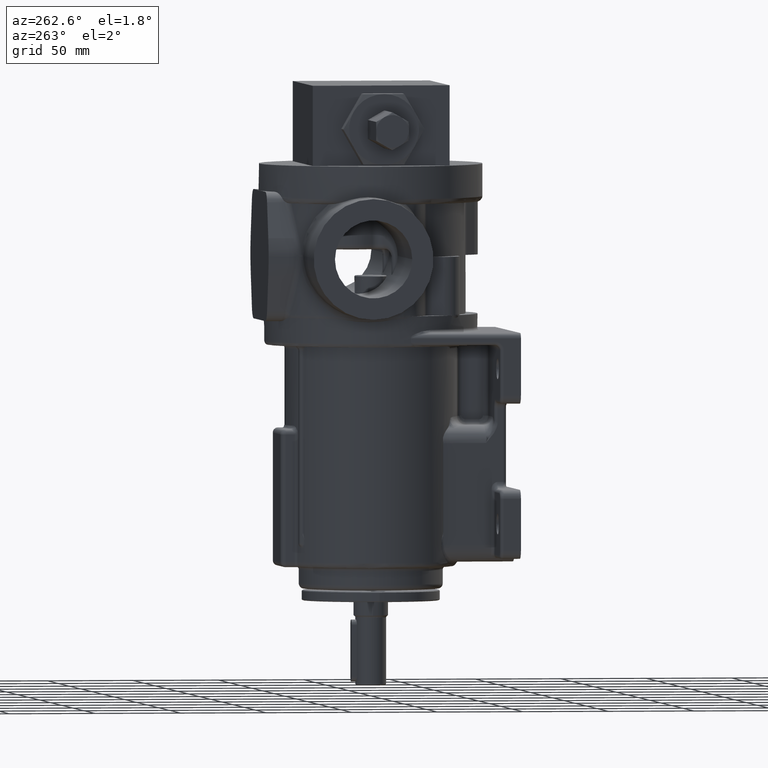
[diagram: clean part render]
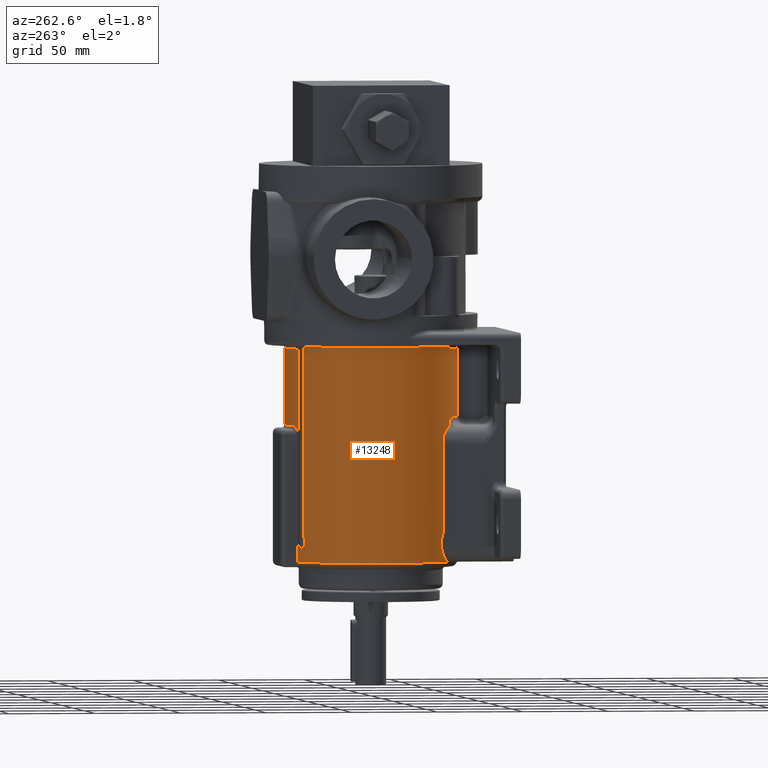
[diagram: same view with one face highlighted and labeled with its STEP entity id]
A machine part, auxiliary view. The second image highlights one B-rep face of the part: STEP entity #13248.
In plain terms, the highlighted cylindrical surface (partial cylindrical patch) has radius 50 mm, axis along (0, 0, 1).
Its self-contained STEP definition (entity closure, byte-faithful):
#170=CARTESIAN_POINT('',(-2.090909090909E1,-4.541816726108E1,-5.15E1));
#171=CARTESIAN_POINT('',(-2.108505140812E1,-4.533715865002E1,
-5.150000754642E1));
#172=CARTESIAN_POINT('',(-2.143541616232E1,-4.517338529727E1,
-5.150753584618E1));
#173=CARTESIAN_POINT('',(-2.195603592203E1,-4.492263820815E1,
-5.154074409750E1));
#174=CARTESIAN_POINT('',(-2.247232157938E1,-4.466660079841E1,
-5.159540813714E1));
#175=CARTESIAN_POINT('',(-2.298462665706E1,-4.440514674513E1,
-5.167129023880E1));
#176=CARTESIAN_POINT('',(-2.349334454397E1,-4.413810970179E1,
-5.176817297457E1));
#177=CARTESIAN_POINT('',(-2.399879775267E1,-4.386533604785E1,
-5.188656847675E1));
#178=CARTESIAN_POINT('',(-2.450132575225E1,-4.358663966195E1,
-5.202507716145E1));
#179=CARTESIAN_POINT('',(-2.483460703415E1,-4.339676569589E1,
-5.213530620335E1));
#180=CARTESIAN_POINT('',(-2.500118916313E1,-4.330058360379E1,
-5.219294280502E1));
#182=CARTESIAN_POINT('',(-3.365384615385E1,-3.697862408275E1,-1.255E2));
#183=CARTESIAN_POINT('',(-3.365296757691E1,-3.697942358630E1,
-1.251409288374E2));
#184=CARTESIAN_POINT('',(-3.365046399908E1,-3.698170297288E1,
-1.244263107221E2));
#185=CARTESIAN_POINT('',(-3.363125409641E1,-3.699917682889E1,
-1.233652970619E2));
#186=CARTESIAN_POINT('',(-3.361171444552E1,-3.701692767061E1,
-1.226645953635E2));
#187=CARTESIAN_POINT('',(-3.359996868996E1,-3.702758571705E1,
-1.223159569855E2));
#189=CARTESIAN_POINT('',(-2.849350907688E1,-4.108673650627E1,-1.355E2));
#190=CARTESIAN_POINT('',(-2.864371447486E1,-4.098256952156E1,
-1.353963800259E2));
#191=CARTESIAN_POINT('',(-2.893844337103E1,-4.077574089467E1,
-1.351825395631E2));
#192=CARTESIAN_POINT('',(-2.936467686273E1,-4.046979674075E1,
-1.348414828356E2));
#193=CARTESIAN_POINT('',(-2.977280111693E1,-4.017041685301E1,
-1.344822932898E2));
#194=CARTESIAN_POINT('',(-3.016170824167E1,-3.987914945356E1,
-1.341066433782E2));
#195=CARTESIAN_POINT('',(-3.053014952536E1,-3.959770237893E1,
-1.337165925439E2));
#196=CARTESIAN_POINT('',(-3.087729737424E1,-3.932751485170E1,
-1.333141267287E2));
#197=CARTESIAN_POINT('',(-3.120258856616E1,-3.906983940411E1,
-1.329012233172E2));
#198=CARTESIAN_POINT('',(-3.150569816754E1,-3.882573999917E1,
-1.324798032630E2));
#199=CARTESIAN_POINT('',(-3.178656485050E1,-3.859604880957E1,
-1.320516552861E2));
#200=CARTESIAN_POINT('',(-3.204534754390E1,-3.838138114219E1,
-1.316184173394E2));
#201=CARTESIAN_POINT('',(-3.228237851926E1,-3.818215922644E1,
-1.311815406231E2));
#202=CARTESIAN_POINT('',(-3.249815364772E1,-3.799860936868E1,
-1.307422525626E2));
#203=CARTESIAN_POINT('',(-3.269326052021E1,-3.783081562641E1,
-1.303015996217E2));
#204=CARTESIAN_POINT('',(-3.286834037103E1,-3.767875010419E1,
-1.298604518992E2));
#205=CARTESIAN_POINT('',(-3.302408416770E1,-3.754227607884E1,
-1.294194813536E2));
#206=CARTESIAN_POINT('',(-3.316119565546E1,-3.742118155286E1,
-1.289791445910E2));
#207=CARTESIAN_POINT('',(-3.328035310895E1,-3.731521623840E1,
-1.285397421741E2));
#208=CARTESIAN_POINT('',(-3.338218394949E1,-3.722411870416E1,
-1.281015080659E2));
#209=CARTESIAN_POINT('',(-3.346730074238E1,-3.714758846800E1,
-1.276643075667E2));
#210=CARTESIAN_POINT('',(-3.353615585435E1,-3.708542124849E1,
-1.272282783515E2));
#211=CARTESIAN_POINT('',(-3.358915998686E1,-3.703740749613E1,
-1.267937199735E2));
#212=CARTESIAN_POINT('',(-3.362684632020E1,-3.700318543887E1,
-1.263583672461E2));
#213=CARTESIAN_POINT('',(-3.364906593681E1,-3.698297521349E1,
-1.259247894212E2));
#214=CARTESIAN_POINT('',(-3.365389500742E1,-3.697858000519E1,
-1.256409514450E2));
#215=CARTESIAN_POINT('',(-3.365384660465E1,-3.697862457775E1,-1.255E2));
#217=CARTESIAN_POINT('',(0.E0,0.E0,-1.355E2));
#218=DIRECTION('',(0.E0,0.E0,1.E0));
#219=DIRECTION('',(-4.230769230769E-1,9.060937684146E-1,0.E0));
#220=AXIS2_PLACEMENT_3D('',#217,#218,#219);
#222=DIRECTION('',(-8.245752426387E-12,-3.851045607214E-12,1.E0));
#223=VECTOR('',#222,7.400000002531E1);
#224=CARTESIAN_POINT('',(-2.115384615385E1,4.530468842073E1,-1.355E2));
#225=LINE('',#224,#223);
#226=CARTESIAN_POINT('',(-2.115384615446E1,4.530468842044E1,-6.149999997469E1));
#227=CARTESIAN_POINT('',(-2.115384097697E1,4.530469074373E1,-6.140968042897E1));
#228=CARTESIAN_POINT('',(-2.114903517042E1,4.530693528138E1,-6.122928609545E1));
#229=CARTESIAN_POINT('',(-2.112775560724E1,4.531686499462E1,-6.095910086840E1));
#230=CARTESIAN_POINT('',(-2.109256461419E1,4.533325958270E1,-6.069030514510E1));
#231=CARTESIAN_POINT('',(-2.104349529351E1,4.535606427369E1,-6.042351883699E1));
#232=CARTESIAN_POINT('',(-2.098037823336E1,4.538530276683E1,-6.015961121402E1));
#233=CARTESIAN_POINT('',(-2.090319567982E1,4.542091216268E1,-5.989894279831E1));
#234=CARTESIAN_POINT('',(-2.081193941564E1,4.546280967027E1,-5.964153661778E1));
#235=CARTESIAN_POINT('',(-2.070658563408E1,4.551090390991E1,-5.938806737337E1));
#236=CARTESIAN_POINT('',(-2.058740214897E1,4.556495621816E1,-5.913994389212E1));
#237=CARTESIAN_POINT('',(-2.045461737608E1,4.562473463339E1,-5.889828925592E1));
#238=CARTESIAN_POINT('',(-2.030838745622E1,4.569002871094E1,-5.866357353629E1));
#239=CARTESIAN_POINT('',(-2.014888386601E1,4.576061006447E1,-5.843646660598E1));
#240=CARTESIAN_POINT('',(-1.997662452922E1,4.583608940649E1,-5.821810804214E1));
#241=CARTESIAN_POINT('',(-1.979220732109E1,4.591604121257E1,-5.800962486342E1));
#242=CARTESIAN_POINT('',(-1.959613666692E1,4.600008093389E1,-5.781179105418E1));
#243=CARTESIAN_POINT('',(-1.938897394274E1,4.608780099133E1,-5.762534437098E1));
#244=CARTESIAN_POINT('',(-1.917134513208E1,4.617877102729E1,-5.745101591154E1));
#245=CARTESIAN_POINT('',(-1.894392573108E1,4.627254726287E1,-5.728951198488E1));
#246=CARTESIAN_POINT('',(-1.870755964734E1,4.636862770016E1,-5.714155222520E1));
#247=CARTESIAN_POINT('',(-1.846316539268E1,4.646649627718E1,-5.700778868027E1));
#248=CARTESIAN_POINT('',(-1.821172396191E1,4.656563138229E1,-5.688879513100E1));
#249=CARTESIAN_POINT('',(-1.795426089553E1,4.666551627234E1,-5.678505594521E1));
#250=CARTESIAN_POINT('',(-1.769183810144E1,4.676564473378E1,-5.669697520580E1));
#251=CARTESIAN_POINT('',(-1.742556665477E1,4.686551873874E1,-5.662484890045E1));
#252=CARTESIAN_POINT('',(-1.715657074867E1,4.696466331432E1,-5.656886327914E1));
#253=CARTESIAN_POINT('',(-1.688614285260E1,4.706257307841E1,-5.652901929145E1));
#254=CARTESIAN_POINT('',(-1.661540061398E1,4.715883593301E1,-5.650524343927E1));
#255=CARTESIAN_POINT('',(-1.643581122523E1,4.722153248972E1,-5.650000425986E1));
#256=CARTESIAN_POINT('',(-1.634615384556E1,4.725254759754E1,-5.65E1));
#258=CARTESIAN_POINT('',(0.E0,0.E0,-5.65E1));
#259=DIRECTION('',(0.E0,0.E0,-1.E0));
#260=DIRECTION('',(-3.269230769231E-1,9.450509519466E-1,0.E0));
#261=AXIS2_PLACEMENT_3D('',#258,#259,#260);
#263=CARTESIAN_POINT('',(1.634615384653E1,4.725254759720E1,-5.65E1));
#264=CARTESIAN_POINT('',(1.643685209765E1,4.722117252771E1,-5.650000853356E1));
#265=CARTESIAN_POINT('',(1.661832996274E1,4.715780925557E1,-5.650538027476E1));
#266=CARTESIAN_POINT('',(1.689136906501E1,4.706070192444E1,-5.652963306995E1));
#267=CARTESIAN_POINT('',(1.716343927344E1,4.696215649658E1,-5.657011485388E1));
#268=CARTESIAN_POINT('',(1.743339846939E1,4.686260728757E1,-5.662676418191E1));
#269=CARTESIAN_POINT('',(1.769987799540E1,4.676260205403E1,-5.669941963417E1));
#270=CARTESIAN_POINT('',(1.796188421131E1,4.666258141562E1,-5.678785785863E1));
#271=CARTESIAN_POINT('',(1.821886217130E1,4.656283826865E1,-5.689188566717E1));
#272=CARTESIAN_POINT('',(1.847007409988E1,4.646375033039E1,-5.701127868537E1));
#273=CARTESIAN_POINT('',(1.871443513214E1,4.636585335226E1,-5.714556890653E1));
#274=CARTESIAN_POINT('',(1.895095694084E1,4.626966847636E1,-5.729421428269E1));
#275=CARTESIAN_POINT('',(1.917853112064E1,4.617578725559E1,-5.745646713728E1));
#276=CARTESIAN_POINT('',(1.939613543695E1,4.608478729608E1,-5.763145865547E1));
#277=CARTESIAN_POINT('',(1.960303789504E1,4.599713972638E1,-5.781840651114E1));
#278=CARTESIAN_POINT('',(1.979859019277E1,4.591328831708E1,-5.801649860879E1));
#279=CARTESIAN_POINT('',(1.998227569206E1,4.583362479246E1,-5.822490315736E1));
#280=CARTESIAN_POINT('',(2.015364201819E1,4.575851339289E1,-5.844280012686E1));
#281=CARTESIAN_POINT('',(2.031228244355E1,4.568829625594E1,-5.866939300853E1));
#282=CARTESIAN_POINT('',(2.045785621830E1,4.562328173150E1,-5.890389007314E1));
#283=CARTESIAN_POINT('',(2.059005875905E1,4.556375515887E1,-5.914527139354E1));
#284=CARTESIAN_POINT('',(2.070862516469E1,4.550997523593E1,-5.939258588753E1));
#285=CARTESIAN_POINT('',(2.081328033787E1,4.546219524619E1,-5.964488180144E1));
#286=CARTESIAN_POINT('',(2.090402691603E1,4.542052932933E1,-5.990142948586E1));
#287=CARTESIAN_POINT('',(2.098093792980E1,4.538504392799E1,-6.016174869425E1));
#288=CARTESIAN_POINT('',(2.104394057876E1,4.535585762448E1,-6.042542357023E1));
#289=CARTESIAN_POINT('',(2.109290246451E1,4.533310236036E1,-6.069208685095E1));
#290=CARTESIAN_POINT('',(2.112795591763E1,4.531677148948E1,-6.096069548492E1));
#291=CARTESIAN_POINT('',(2.114909616023E1,4.530690709031E1,-6.123041524306E1));
#292=CARTESIAN_POINT('',(2.115384379173E1,4.530468879781E1,-6.141011038104E1));
#293=CARTESIAN_POINT('',(2.115384615369E1,4.530468842080E1,-6.150000000704E1));
#295=DIRECTION('',(2.133980680054E-12,-9.980244859721E-13,-1.E0));
#296=VECTOR('',#295,7.399999999296E1);
#297=CARTESIAN_POINT('',(2.115384615369E1,4.530468842080E1,-6.150000000704E1));
#298=LINE('',#297,#296);
#299=CARTESIAN_POINT('',(0.E0,0.E0,-1.355E2));
#300=DIRECTION('',(0.E0,0.E0,1.E0));
#301=DIRECTION('',(5.698701842444E-1,-8.217347340287E-1,0.E0));
#302=AXIS2_PLACEMENT_3D('',#299,#300,#301);
#304=CARTESIAN_POINT('',(3.365384659857E1,-3.697862457125E1,-1.255E2));
#305=CARTESIAN_POINT('',(3.365389502754E1,-3.697857997793E1,-1.256409035699E2));
#306=CARTESIAN_POINT('',(3.364906692782E1,-3.698297431365E1,-1.259246653571E2));
#307=CARTESIAN_POINT('',(3.362685927465E1,-3.700317366125E1,-1.263581908158E2));
#308=CARTESIAN_POINT('',(3.358917793511E1,-3.703739121455E1,-1.267935433862E2));
#309=CARTESIAN_POINT('',(3.353618345429E1,-3.708539627878E1,-1.272280783845E2));
#310=CARTESIAN_POINT('',(3.346733871418E1,-3.714755424755E1,-1.276640936040E2));
#311=CARTESIAN_POINT('',(3.338223056584E1,-3.722407688213E1,-1.281012869394E2));
#312=CARTESIAN_POINT('',(3.328041378067E1,-3.731516210207E1,-1.285395001451E2));
#313=CARTESIAN_POINT('',(3.316126953978E1,-3.742111605291E1,-1.289788911029E2));
#314=CARTESIAN_POINT('',(3.302417270530E1,-3.754219815915E1,-1.294192130208E2));
#315=CARTESIAN_POINT('',(3.286844672432E1,-3.767865728336E1,-1.298601678922E2));
#316=CARTESIAN_POINT('',(3.269338489270E1,-3.783070809173E1,-1.303013025339E2));
#317=CARTESIAN_POINT('',(3.249829757302E1,-3.799848621786E1,-1.307419435611E2));
#318=CARTESIAN_POINT('',(3.228254017145E1,-3.818202250317E1,-1.311812281447E2));
#319=CARTESIAN_POINT('',(3.204552086812E1,-3.838123640173E1,-1.316181124944E2));
#320=CARTESIAN_POINT('',(3.178674255438E1,-3.859590246448E1,-1.320513727267E2));
#321=CARTESIAN_POINT('',(3.150586764762E1,-3.882560254262E1,-1.324795583911E2));
#322=CARTESIAN_POINT('',(3.120273379323E1,-3.906972356265E1,-1.329010308832E2));
#323=CARTESIAN_POINT('',(3.087740392027E1,-3.932743141339E1,-1.333140002002E2));
#324=CARTESIAN_POINT('',(3.053020396152E1,-3.959766068341E1,-1.337165346695E2));
#325=CARTESIAN_POINT('',(3.016170568864E1,-3.987915165185E1,-1.341066465101E2));
#326=CARTESIAN_POINT('',(2.977275015871E1,-4.017045484781E1,-1.344823422225E2));
#327=CARTESIAN_POINT('',(2.936459622636E1,-4.046985526305E1,-1.348415512284E2));
#328=CARTESIAN_POINT('',(2.893836815542E1,-4.077579435618E1,-1.351825949431E2));
#329=CARTESIAN_POINT('',(2.864368293836E1,-4.098259082982E1,-1.353964020571E2));
#330=CARTESIAN_POINT('',(2.849350896947E1,-4.108673635140E1,-1.355E2));
#332=CARTESIAN_POINT('',(3.360006979150E1,-3.702749397416E1,-1.223183741965E2));
#333=CARTESIAN_POINT('',(3.361196280366E1,-3.701670216727E1,-1.226696453829E2));
#334=CARTESIAN_POINT('',(3.363180780875E1,-3.699867347180E1,-1.233736809254E2));
#335=CARTESIAN_POINT('',(3.365037509314E1,-3.698178374501E1,-1.244346544295E2));
#336=CARTESIAN_POINT('',(3.365310215044E1,-3.697930114590E1,-1.251444310286E2));
#337=CARTESIAN_POINT('',(3.365384615385E1,-3.697862408275E1,-1.255E2));
#339=CARTESIAN_POINT('',(3.360006979150E1,-3.702749397416E1,-1.223183741965E2));
#340=CARTESIAN_POINT('',(3.369567637218E1,-3.694073715001E1,-1.223805923648E2));
#341=CARTESIAN_POINT('',(3.387731159131E1,-3.677456017274E1,-1.224931538268E2));
#342=CARTESIAN_POINT('',(3.411926107071E1,-3.655008611286E1,-1.226233279879E2));
#343=CARTESIAN_POINT('',(3.433812581297E1,-3.634446966995E1,-1.227239643419E2));
#344=CARTESIAN_POINT('',(3.453819711483E1,-3.615434945713E1,-1.227997590115E2));
#345=CARTESIAN_POINT('',(3.466477310062E1,-3.603277298109E1,-1.228378333174E2));
#346=CARTESIAN_POINT('',(3.472591926364E1,-3.597374780719E1,-1.228534144645E2));
#348=CARTESIAN_POINT('',(3.020833333334E1,3.984289895605E1,-1.235E2));
#349=CARTESIAN_POINT('',(3.063216158635E1,3.952155825348E1,-1.234999999966E2));
#350=CARTESIAN_POINT('',(3.146956244237E1,3.886535030652E1,-1.234999999914E2));
#351=CARTESIAN_POINT('',(3.269361769740E1,3.784146107942E1,-1.234999999893E2));
#352=CARTESIAN_POINT('',(3.388438043740E1,3.677903719702E1,-1.234999999910E2));
#353=CARTESIAN_POINT('',(3.504063808938E1,3.567916054306E1,-1.234999999953E2));
#354=CARTESIAN_POINT('',(3.616121321465E1,3.454295114222E1,-1.235000000007E2));
#355=CARTESIAN_POINT('',(3.724496471126E1,3.337156601700E1,-1.235000000060E2));
#356=CARTESIAN_POINT('',(3.829078897425E1,3.216619801125E1,-1.235000000097E2));
#357=CARTESIAN_POINT('',(3.929762102076E1,3.092807457436E1,-1.235000000106E2));
#358=CARTESIAN_POINT('',(4.026443557544E1,2.965845651006E1,-1.235000000073E2));
#359=CARTESIAN_POINT('',(4.119024811389E1,2.835863669299E1,-1.234999999980E2));
#360=CARTESIAN_POINT('',(4.207411586436E1,2.702993875319E1,-1.234999999830E2));
#361=CARTESIAN_POINT('',(4.291513876758E1,2.567371572888E1,-1.234999999702E2));
#362=CARTESIAN_POINT('',(4.371246039407E1,2.429134868764E1,-1.234999999671E2));
#363=CARTESIAN_POINT('',(4.446526881699E1,2.288424531858E1,-1.234999999786E2));
#364=CARTESIAN_POINT('',(4.517279743842E1,2.145383849941E1,-1.235000000121E2));
#365=CARTESIAN_POINT('',(4.583432576844E1,2.000158484028E1,-1.235000000635E2));
#366=CARTESIAN_POINT('',(4.644918015871E1,1.852896320215E1,-1.235000001102E2));
#367=CARTESIAN_POINT('',(4.701673449069E1,1.703747318674E1,-1.235000001322E2));
#368=CARTESIAN_POINT('',(4.753641081822E1,1.552863359407E1,-1.235000000893E2));
#369=CARTESIAN_POINT('',(4.800767995105E1,1.400398088131E1,-1.234999999120E2));
#370=CARTESIAN_POINT('',(4.843006197886E1,1.246506764946E1,-1.234999996651E2));
#371=CARTESIAN_POINT('',(4.880312676571E1,1.091346107153E1,-1.234999995519E2));
#372=CARTESIAN_POINT('',(4.912649441372E1,9.350741213291E0,-1.234999997207E2));
#373=CARTESIAN_POINT('',(4.939983567598E1,7.778499221558E0,-1.234999999686E2));
#374=CARTESIAN_POINT('',(4.962287223043E1,6.198335821336E0,-1.235000000672E2));
#375=CARTESIAN_POINT('',(4.979537686540E1,4.611860536477E0,-1.235000000223E2));
#376=CARTESIAN_POINT('',(4.991717384850E1,3.020690009898E0,-1.234999999869E2));
#377=CARTESIAN_POINT('',(4.998813927877E1,1.426444649129E0,-1.235000000330E2));
#378=CARTESIAN_POINT('',(5.000820103590E1,-1.692552908916E-1,
-1.235000000474E2));
#379=CARTESIAN_POINT('',(4.997733829387E1,-1.764789094090E0,-1.234999998917E2));
#380=CARTESIAN_POINT('',(4.989558223883E1,-3.358524239484E0,-1.234999997789E2));
#381=CARTESIAN_POINT('',(4.976301799563E1,-4.948820959530E0,-1.235000000639E2));
#382=CARTESIAN_POINT('',(4.957978195422E1,-6.534065716840E0,-1.235000008938E2));
#383=CARTESIAN_POINT('',(4.934605438358E1,-8.112693254347E0,-1.234999999993E2));
#384=CARTESIAN_POINT('',(4.906205904979E1,-9.683145262026E0,-1.235000000456E2));
#385=CARTESIAN_POINT('',(4.872810427453E1,-1.124369096191E1,-1.234999998825E2));
#386=CARTESIAN_POINT('',(4.834460016615E1,-1.279249950960E1,-1.235000005568E2));
#387=CARTESIAN_POINT('',(4.791191783654E1,-1.432817995473E1,-1.234999980908E2));
#388=CARTESIAN_POINT('',(4.743027102666E1,-1.584989710111E1,-1.235000073489E2));
#389=CARTESIAN_POINT('',(4.689989730979E1,-1.735655864957E1,-1.234999707499E2));
#390=CARTESIAN_POINT('',(4.632209674174E1,-1.884435758114E1,-1.234999171900E2));
#391=CARTESIAN_POINT('',(4.569911126990E1,-2.030846055839E1,-1.234999642758E2));
#392=CARTESIAN_POINT('',(4.502938312010E1,-2.175330370682E1,-1.234999226022E2));
#393=CARTESIAN_POINT('',(4.430730761875E1,-2.318905557840E1,-1.235000781417E2));
#394=CARTESIAN_POINT('',(4.353351424760E1,-2.461108631595E1,-1.235000056081E2));
#395=CARTESIAN_POINT('',(4.271848399629E1,-2.599970342774E1,-1.235001015736E2));
#396=CARTESIAN_POINT('',(4.187300869344E1,-2.733985589650E1,-1.234999515176E2));
#397=CARTESIAN_POINT('',(4.101072640390E1,-2.861613323383E1,-1.235006144259E2));
#398=CARTESIAN_POINT('',(4.014424742816E1,-2.981844416505E1,-1.234961570163E2));
#399=CARTESIAN_POINT('',(3.928426244875E1,-3.094154690828E1,-1.234760360691E2));
#400=CARTESIAN_POINT('',(3.844202567809E1,-3.198076109715E1,-1.234341595261E2));
#401=CARTESIAN_POINT('',(3.763041429258E1,-3.293075604900E1,-1.233675386377E2));
#402=CARTESIAN_POINT('',(3.685518794991E1,-3.379517063161E1,-1.232759688855E2));
#403=CARTESIAN_POINT('',(3.611368671792E1,-3.458564547233E1,-1.231598699588E2));
#404=CARTESIAN_POINT('',(3.540433672566E1,-3.531085438626E1,-1.230200347810E2));
#405=CARTESIAN_POINT('',(3.494856698385E1,-3.575882311272E1,-1.229115314543E2));
#406=CARTESIAN_POINT('',(3.472591926364E1,-3.597374780719E1,-1.228534144645E2));
#408=CARTESIAN_POINT('',(3.020833333334E1,3.984289895605E1,-1.235E2));
#409=CARTESIAN_POINT('',(3.009977990782E1,3.992520265755E1,-1.234999762325E2));
#410=CARTESIAN_POINT('',(2.988404073416E1,4.008737761851E1,-1.234936149822E2));
#411=CARTESIAN_POINT('',(2.956409370582E1,4.032388888104E1,-1.234648034436E2));
#412=CARTESIAN_POINT('',(2.924964772040E1,4.055252405671E1,-1.234177077930E2));
#413=CARTESIAN_POINT('',(2.894179414438E1,4.077277177543E1,-1.233530173822E2));
#414=CARTESIAN_POINT('',(2.864168517553E1,4.098411026223E1,-1.232715542144E2));
#415=CARTESIAN_POINT('',(2.835031406289E1,4.118616340614E1,-1.231741548262E2));
#416=CARTESIAN_POINT('',(2.806857604833E1,4.137864519316E1,-1.230617003729E2));
#417=CARTESIAN_POINT('',(2.779723909496E1,4.156137126852E1,-1.229351003357E2));
#418=CARTESIAN_POINT('',(2.753699903403E1,4.173421483933E1,-1.227953130143E2));
#419=CARTESIAN_POINT('',(2.728829160328E1,4.189721983177E1,-1.226432647501E2));
#420=CARTESIAN_POINT('',(2.705199683044E1,4.205014285905E1,-1.224801369544E2));
#421=CARTESIAN_POINT('',(2.690187986091E1,4.214613107781E1,-1.223642341272E2));
#422=CARTESIAN_POINT('',(2.682877634381E1,4.219261499236E1,-1.223044753569E2));
#424=CARTESIAN_POINT('',(2.682877634379E1,4.219261499238E1,-1.244999999958E2));
#425=CARTESIAN_POINT('',(2.682877109865E1,4.219261962761E1,-1.245629588230E2));
#426=CARTESIAN_POINT('',(2.682526147741E1,4.219484966197E1,-1.246883982957E2));
#427=CARTESIAN_POINT('',(2.680988551696E1,4.220462342347E1,-1.248754440228E2));
#428=CARTESIAN_POINT('',(2.678464244341E1,4.222065065984E1,-1.250604137852E2));
#429=CARTESIAN_POINT('',(2.674968648198E1,4.224281011692E1,-1.252427200987E2));
#430=CARTESIAN_POINT('',(2.670503083103E1,4.227105942329E1,-1.254216450286E2));
#431=CARTESIAN_POINT('',(2.665072077489E1,4.230532705629E1,-1.255965116971E2));
#432=CARTESIAN_POINT('',(2.658710293731E1,4.234534346008E1,-1.257667927322E2));
#433=CARTESIAN_POINT('',(2.651441143998E1,4.239090396460E1,-1.259319119958E2));
#434=CARTESIAN_POINT('',(2.643292955201E1,4.244176759778E1,-1.260911423973E2));
#435=CARTESIAN_POINT('',(2.634288066790E1,4.249772616366E1,-1.262437039406E2));
#436=CARTESIAN_POINT('',(2.624466503721E1,4.255845805033E1,-1.263889471094E2));
#437=CARTESIAN_POINT('',(2.613879947645E1,4.262356931949E1,-1.265263216957E2));
#438=CARTESIAN_POINT('',(2.602575739274E1,4.269269435971E1,-1.266552485414E2));
#439=CARTESIAN_POINT('',(2.590600212855E1,4.276547604578E1,-1.267751574119E2));
#440=CARTESIAN_POINT('',(2.577997318777E1,4.284157485995E1,-1.268854344744E2));
#441=CARTESIAN_POINT('',(2.564813822160E1,4.292063839961E1,-1.269858639115E2));
#442=CARTESIAN_POINT('',(2.551091568159E1,4.300234853650E1,-1.270762158130E2));
#443=CARTESIAN_POINT('',(2.536887741416E1,4.308630170347E1,-1.271561061389E2));
#444=CARTESIAN_POINT('',(2.522269975074E1,4.317204204923E1,-1.272250732402E2));
#445=CARTESIAN_POINT('',(2.507297679505E1,4.325917284081E1,-1.272828224125E2));
#446=CARTESIAN_POINT('',(2.492014064389E1,4.334740063583E1,-1.273293367044E2));
#447=CARTESIAN_POINT('',(2.476472050635E1,4.343638367607E1,-1.273644582711E2));
#448=CARTESIAN_POINT('',(2.460758377214E1,4.352559889377E1,-1.273879611202E2));
#449=CARTESIAN_POINT('',(2.444954241574E1,4.361457163350E1,-1.273997089940E2));
#450=CARTESIAN_POINT('',(2.429104998201E1,4.370304177191E1,-1.273998332369E2));
#451=CARTESIAN_POINT('',(2.413257778253E1,4.379074767065E1,-1.273883835696E2));
#452=CARTESIAN_POINT('',(2.397456903930E1,4.387745197768E1,-1.273653289693E2));
#453=CARTESIAN_POINT('',(2.381759048377E1,4.396285820210E1,-1.273306610688E2));
#454=CARTESIAN_POINT('',(2.366246311757E1,4.404654377738E1,-1.272845837817E2));
#455=CARTESIAN_POINT('',(2.350996326054E1,4.412812446895E1,-1.272273009335E2));
#456=CARTESIAN_POINT('',(2.336089975242E1,4.420721208118E1,-1.271590912204E2));
#457=CARTESIAN_POINT('',(2.321595117600E1,4.428349828917E1,-1.270804179548E2));
#458=CARTESIAN_POINT('',(2.312273112194E1,4.433217792945E1,-1.270214424161E2));
#459=CARTESIAN_POINT('',(2.307692307685E1,4.435600997954E1,-1.269902876473E2));
#461=CARTESIAN_POINT('',(2.307692307685E1,4.435600997954E1,-1.269902876473E2));
#462=CARTESIAN_POINT('',(2.298252001328E1,4.440512433647E1,-1.269260889293E2));
#463=CARTESIAN_POINT('',(2.280428978440E1,4.449708923553E1,-1.267977602180E2));
#464=CARTESIAN_POINT('',(2.256804651785E1,4.461730246666E1,-1.266078335770E2));
#465=CARTESIAN_POINT('',(2.236135248208E1,4.472119529217E1,-1.264219705638E2));
#466=CARTESIAN_POINT('',(2.218226118899E1,4.481025184027E1,-1.262418352234E2));
#467=CARTESIAN_POINT('',(2.202864402942E1,4.488593450234E1,-1.260680750180E2));
#468=CARTESIAN_POINT('',(2.189777645289E1,4.494989815233E1,-1.259012939616E2));
#469=CARTESIAN_POINT('',(2.178677006029E1,4.500378770715E1,-1.257406706120E2));
#470=CARTESIAN_POINT('',(2.169312867E1,4.504898617826E1,-1.255856799006E2));
#471=CARTESIAN_POINT('',(2.161513400777E1,4.508645054819E1,-1.254360540689E2));
#472=CARTESIAN_POINT('',(2.155100276648E1,4.511713232221E1,-1.252914927712E2));
#473=CARTESIAN_POINT('',(2.149940888348E1,4.514173533036E1,-1.251514820895E2));
#474=CARTESIAN_POINT('',(2.145890974971E1,4.516099746914E1,-1.250154853776E2));
#475=CARTESIAN_POINT('',(2.142868223193E1,4.517534544175E1,-1.248831116683E2));
#476=CARTESIAN_POINT('',(2.140804112028E1,4.518512881440E1,-1.247534253372E2));
#477=CARTESIAN_POINT('',(2.139572649774E1,4.519096104984E1,-1.246260887424E2));
#478=CARTESIAN_POINT('',(2.139287295226E1,4.519230997794E1,-1.245418671279E2));
#479=CARTESIAN_POINT('',(2.139288009737E1,4.519230776514E1,-1.245000015973E2));
#481=DIRECTION('',(1.379956402407E-9,-6.532352562226E-10,1.E0));
#482=VECTOR('',#481,1.115000015973E2);
#483=CARTESIAN_POINT('',(2.139288009737E1,4.519230776514E1,-1.245000015973E2));
#484=LINE('',#483,#482);
#485=CARTESIAN_POINT('',(2.139288025124E1,4.519230769231E1,-1.3E1));
#486=CARTESIAN_POINT('',(2.139288008508E1,4.519230777097E1,-1.298506023942E1));
#487=CARTESIAN_POINT('',(2.139151864739E1,4.519295227950E1,-1.295484401185E1));
#488=CARTESIAN_POINT('',(2.138511434928E1,4.519598338091E1,-1.290851795287E1));
#489=CARTESIAN_POINT('',(2.137399403894E1,4.520124392148E1,-1.286116337981E1));
#490=CARTESIAN_POINT('',(2.135784384515E1,4.520887799061E1,-1.281293968986E1));
#491=CARTESIAN_POINT('',(2.133597086529E1,4.521920609667E1,-1.276320572388E1));
#492=CARTESIAN_POINT('',(2.130743206146E1,4.523266249683E1,-1.271159321103E1));
#493=CARTESIAN_POINT('',(2.127123691267E1,4.524969768876E1,-1.265804851842E1));
#494=CARTESIAN_POINT('',(2.122599052255E1,4.527094375162E1,-1.260231602932E1));
#495=CARTESIAN_POINT('',(2.116998856315E1,4.529716475894E1,-1.254428298381E1));
#496=CARTESIAN_POINT('',(2.110125710295E1,4.532923191908E1,-1.248403275379E1));
#497=CARTESIAN_POINT('',(2.101764258905E1,4.536807342220E1,-1.242195343886E1));
#498=CARTESIAN_POINT('',(2.091714921171E1,4.541450985312E1,-1.235888468186E1));
#499=CARTESIAN_POINT('',(2.079746487956E1,4.546946502166E1,-1.229573312102E1));
#500=CARTESIAN_POINT('',(2.065598359111E1,4.553394064461E1,-1.223361492670E1));
#501=CARTESIAN_POINT('',(2.048960296918E1,4.560909034557E1,-1.217385997972E1));
#502=CARTESIAN_POINT('',(2.029437978141E1,4.569634366954E1,-1.211812949501E1));
#503=CARTESIAN_POINT('',(2.006835334405E1,4.579611471904E1,-1.206928336538E1));
#504=CARTESIAN_POINT('',(1.981382471016E1,4.590687199511E1,-1.203086905473E1));
#505=CARTESIAN_POINT('',(1.953295081772E1,4.602713322754E1,-1.200591787690E1));
#506=CARTESIAN_POINT('',(1.933381329648E1,4.611091116798E1,-1.200000052545E1));
#507=CARTESIAN_POINT('',(1.923076763208E1,4.615384680991E1,-1.199999993020E1));
#509=CARTESIAN_POINT('',(1.923076763593E1,4.615384681836E1,-1.2E1));
#510=CARTESIAN_POINT('',(1.874311687529E1,4.635703461552E1,-1.2E1));
#511=CARTESIAN_POINT('',(1.776137744790E1,4.674795036725E1,-1.2E1));
#512=CARTESIAN_POINT('',(1.627093773699E1,4.728735526166E1,-1.2E1));
#513=CARTESIAN_POINT('',(1.476415506616E1,4.777925395740E1,-1.2E1));
#514=CARTESIAN_POINT('',(1.324253676920E1,4.822315430065E1,-1.2E1));
#515=CARTESIAN_POINT('',(1.170760332132E1,4.861861201601E1,-1.2E1));
#516=CARTESIAN_POINT('',(1.016089072029E1,4.896522970350E1,-1.2E1));
#517=CARTESIAN_POINT('',(8.603985728738E0,4.926265111369E1,-1.2E1));
#518=CARTESIAN_POINT('',(7.038508709940E0,4.951057148868E1,-1.2E1));
#519=CARTESIAN_POINT('',(5.465978290765E0,4.970875608450E1,-1.2E1));
#520=CARTESIAN_POINT('',(3.887805384698E0,4.985702152666E1,-1.2E1));
#521=CARTESIAN_POINT('',(2.305462809240E0,4.995520619436E1,-1.2E1));
#522=CARTESIAN_POINT('',(7.210337692479E-1,5.000317078460E1,-1.2E1));
#523=CARTESIAN_POINT('',(-8.631463497496E-1,5.000091207348E1,-1.2E1));
#524=CARTESIAN_POINT('',(-2.446108124675E0,4.994849732621E1,-1.200000000001E1));
#525=CARTESIAN_POINT('',(-4.029289724585E0,4.984586608980E1,-1.199999999997E1));
#526=CARTESIAN_POINT('',(-5.610013699641E0,4.969253981756E1,-1.200000000012E1));
#527=CARTESIAN_POINT('',(-7.118867754640E0,4.949776498851E1,-1.199999999954E1));
#528=CARTESIAN_POINT('',(-8.475828841126E0,4.928194467440E1,-1.200000000171E1));
#529=CARTESIAN_POINT('',(-9.665246175352E0,4.906142679369E1,-1.199999999361E1));
#530=CARTESIAN_POINT('',(-1.075574696264E1,4.883343837536E1,-1.200000002384E1));
#531=CARTESIAN_POINT('',(-1.179902293713E1,4.859183936511E1,-1.199999991102E1));
#532=CARTESIAN_POINT('',(-1.284814405274E1,4.832512486531E1,-1.200000033208E1));
#533=CARTESIAN_POINT('',(-1.388950932451E1,4.803610530536E1,-1.199999876065E1));
#534=CARTESIAN_POINT('',(-1.491843614067E1,4.772658178435E1,-1.200000462531E1));
#535=CARTESIAN_POINT('',(-1.595235519575E1,4.739121163440E1,-1.199998273811E1));
#536=CARTESIAN_POINT('',(-1.700766071899E1,4.702302903414E1,-1.200006442226E1));
#537=CARTESIAN_POINT('',(-1.809203884870E1,4.661716290159E1,-1.199975957285E1));
#538=CARTESIAN_POINT('',(-1.886044208496E1,4.630825533341E1,-1.200051804852E1));
#539=CARTESIAN_POINT('',(-1.925332241428E1,4.614444252574E1,-1.200051806190E1));
#541=CARTESIAN_POINT('',(-1.925332241428E1,4.614444252574E1,-1.200051806190E1));
#542=CARTESIAN_POINT('',(-1.927472830202E1,4.613551726914E1,-1.200051982119E1));
#543=CARTESIAN_POINT('',(-1.931845141402E1,4.611723295031E1,-1.200038602931E1));
#544=CARTESIAN_POINT('',(-1.939241555172E1,4.608618298035E1,-1.200236485157E1));
#545=CARTESIAN_POINT('',(-1.945788600102E1,4.605857391694E1,-1.200477621805E1));
#546=CARTESIAN_POINT('',(-1.952176123172E1,4.603153722619E1,-1.200799302981E1));
#547=CARTESIAN_POINT('',(-1.958428292290E1,4.600497152383E1,-1.201192522818E1));
#548=CARTESIAN_POINT('',(-1.964751725396E1,4.597800186218E1,-1.201672474673E1));
#549=CARTESIAN_POINT('',(-1.971062770669E1,4.595098142517E1,-1.202237032144E1));
#550=CARTESIAN_POINT('',(-1.977285158822E1,4.592424083459E1,-1.202878468386E1));
#551=CARTESIAN_POINT('',(-1.983723729706E1,4.589646779455E1,-1.203632521263E1));
#552=CARTESIAN_POINT('',(-1.990656881290E1,4.586644333081E1,-1.204550732423E1));
#553=CARTESIAN_POINT('',(-1.998398115622E1,4.583277382183E1,-1.205712276107E1));
#554=CARTESIAN_POINT('',(-2.007053642783E1,4.579494358538E1,-1.207191502445E1));
#555=CARTESIAN_POINT('',(-2.016608068232E1,4.575295801359E1,-1.209059366952E1));
#556=CARTESIAN_POINT('',(-2.027108642705E1,4.570654121991E1,-1.211417382018E1));
#557=CARTESIAN_POINT('',(-2.038713741158E1,4.565490685562E1,-1.214432350039E1));
#558=CARTESIAN_POINT('',(-2.051673024831E1,4.559683783064E1,-1.218357606240E1));
#559=CARTESIAN_POINT('',(-2.066423236482E1,4.553019379383E1,-1.223698480794E1));
#560=CARTESIAN_POINT('',(-2.080740617883E1,4.546491810039E1,-1.230048651335E1));
#561=CARTESIAN_POINT('',(-2.092489161903E1,4.541094020587E1,-1.236342044645E1));
#562=CARTESIAN_POINT('',(-2.102398570686E1,4.536513356599E1,-1.242631614721E1));
#563=CARTESIAN_POINT('',(-2.110621106364E1,4.532692448007E1,-1.248807588603E1));
#564=CARTESIAN_POINT('',(-2.117375173898E1,4.529540526856E1,-1.254790633950E1));
#565=CARTESIAN_POINT('',(-2.122881034879E1,4.526962114188E1,-1.260553562209E1));
#566=CARTESIAN_POINT('',(-2.127329496146E1,4.524872993454E1,-1.266085590011E1));
#567=CARTESIAN_POINT('',(-2.130890227578E1,4.523196975539E1,-1.271402355347E1));
#568=CARTESIAN_POINT('',(-2.133696407947E1,4.521873735349E1,-1.276525234224E1));
#569=CARTESIAN_POINT('',(-2.135845108504E1,4.520859105982E1,-1.281454248496E1));
#570=CARTESIAN_POINT('',(-2.137437419059E1,4.520106413634E1,-1.286253728601E1));
#571=CARTESIAN_POINT('',(-2.138529033114E1,4.519590009745E1,-1.290953583773E1));
#572=CARTESIAN_POINT('',(-2.139154695643E1,4.519293887730E1,-1.295536829768E1));
#573=CARTESIAN_POINT('',(-2.139288005868E1,4.519230778247E1,-1.298524163353E1));
#574=CARTESIAN_POINT('',(-2.139288025124E1,4.519230769231E1,-1.3E1));
#576=DIRECTION('',(-2.983071554006E-9,-1.412120882618E-9,-1.E0));
#577=VECTOR('',#576,1.114999969330E2);
#578=CARTESIAN_POINT('',(-2.139288025124E1,4.519230769231E1,-1.3E1));
#579=LINE('',#578,#577);
#580=CARTESIAN_POINT('',(-2.139288058385E1,4.519230753486E1,-1.244999969330E2));
#581=CARTESIAN_POINT('',(-2.139286685726E1,4.519231180505E1,-1.245391008193E2));
#582=CARTESIAN_POINT('',(-2.139537687646E1,4.519112700938E1,-1.246173366678E2));
#583=CARTESIAN_POINT('',(-2.140615743745E1,4.518602081788E1,-1.247354425931E2));
#584=CARTESIAN_POINT('',(-2.142350586942E1,4.517779954671E1,-1.248524091862E2));
#585=CARTESIAN_POINT('',(-2.144701430906E1,4.516664542579E1,-1.249663280934E2));
#586=CARTESIAN_POINT('',(-2.147674193779E1,4.515251936901E1,-1.250779692052E2));
#587=CARTESIAN_POINT('',(-2.151425844122E1,4.513465853139E1,-1.251934934427E2));
#588=CARTESIAN_POINT('',(-2.156205544886E1,4.511184940475E1,-1.253172757009E2));
#589=CARTESIAN_POINT('',(-2.162385537958E1,4.508226760838E1,-1.254539759913E2));
#590=CARTESIAN_POINT('',(-2.170223412512E1,4.504460172848E1,-1.256023255867E2));
#591=CARTESIAN_POINT('',(-2.179830816966E1,4.499820244540E1,-1.257583719015E2));
#592=CARTESIAN_POINT('',(-2.191092986288E1,4.494348890897E1,-1.259189568609E2));
#593=CARTESIAN_POINT('',(-2.204209729859E1,4.487932975825E1,-1.260843876185E2));
#594=CARTESIAN_POINT('',(-2.219570427160E1,4.480359409319E1,-1.262557742073E2));
#595=CARTESIAN_POINT('',(-2.237392564658E1,4.471490424864E1,-1.264340770437E2));
#596=CARTESIAN_POINT('',(-2.257885776537E1,4.461182695714E1,-1.266167380252E2));
#597=CARTESIAN_POINT('',(-2.281125252640E1,4.449350876041E1,-1.268029934042E2));
#598=CARTESIAN_POINT('',(-2.298515058617E1,4.440375476128E1,-1.269278843414E2));
#599=CARTESIAN_POINT('',(-2.307692307680E1,4.435600997957E1,-1.269902876473E2));
#601=CARTESIAN_POINT('',(-2.307692307680E1,4.435600997957E1,-1.269902876473E2));
#602=CARTESIAN_POINT('',(-2.312347270560E1,4.433179293600E1,-1.270219440274E2));
#603=CARTESIAN_POINT('',(-2.321804268637E1,4.428240377105E1,-1.270816287528E2));
#604=CARTESIAN_POINT('',(-2.336444843659E1,4.420533842317E1,-1.271606992706E2));
#605=CARTESIAN_POINT('',(-2.351442528224E1,4.412574790903E1,-1.272289303714E2));
#606=CARTESIAN_POINT('',(-2.366733904320E1,4.404392432982E1,-1.272861236089E2));
#607=CARTESIAN_POINT('',(-2.382247984614E1,4.396020872714E1,-1.273319610029E2));
#608=CARTESIAN_POINT('',(-2.397921910449E1,4.387491051928E1,-1.273661891369E2));
#609=CARTESIAN_POINT('',(-2.413710061285E1,4.378825489933E1,-1.273888904832E2));
#610=CARTESIAN_POINT('',(-2.429568141455E1,4.370046750486E1,-1.274000384091E2));
#611=CARTESIAN_POINT('',(-2.445438405325E1,4.361185753814E1,-1.273995690654E2));
#612=CARTESIAN_POINT('',(-2.461262702453E1,4.352274745040E1,-1.273873641343E2));
#613=CARTESIAN_POINT('',(-2.476973608315E1,4.343352350088E1,-1.273634402366E2));
#614=CARTESIAN_POINT('',(-2.492492810538E1,4.334464758158E1,-1.273280003524E2));
#615=CARTESIAN_POINT('',(-2.507747728341E1,4.325656361654E1,-1.272812328543E2));
#616=CARTESIAN_POINT('',(-2.522690072787E1,4.316958690915E1,-1.272232639838E2));
#617=CARTESIAN_POINT('',(-2.537269743146E1,4.308405166660E1,-1.271541222276E2));
#618=CARTESIAN_POINT('',(-2.551431795911E1,4.300032939761E1,-1.270741255487E2));
#619=CARTESIAN_POINT('',(-2.565118618514E1,4.291881645547E1,-1.269836807563E2));
#620=CARTESIAN_POINT('',(-2.578275407469E1,4.283990100074E1,-1.268831388399E2));
#621=CARTESIAN_POINT('',(-2.590851683876E1,4.276395222636E1,-1.267727954422E2));
#622=CARTESIAN_POINT('',(-2.602794344453E1,4.269136122793E1,-1.266529220956E2));
#623=CARTESIAN_POINT('',(-2.614066093208E1,4.262242739441E1,-1.265240673355E2));
#624=CARTESIAN_POINT('',(-2.624628231421E1,4.255746045146E1,-1.263867102990E2));
#625=CARTESIAN_POINT('',(-2.634430619577E1,4.249684230122E1,-1.262414410865E2));
#626=CARTESIAN_POINT('',(-2.643415229496E1,4.244100584721E1,-1.260889120883E2));
#627=CARTESIAN_POINT('',(-2.651541455783E1,4.239027632905E1,-1.259298440277E2));
#628=CARTESIAN_POINT('',(-2.658786005251E1,4.234486789309E1,-1.257650169158E2));
#629=CARTESIAN_POINT('',(-2.665121890354E1,4.230501308866E1,-1.255951443061E2));
#630=CARTESIAN_POINT('',(-2.670530280402E1,4.227088749663E1,-1.254206468210E2));
#631=CARTESIAN_POINT('',(-2.674980474108E1,4.224273518323E1,-1.252418967436E2));
#632=CARTESIAN_POINT('',(-2.678470140218E1,4.222061326056E1,-1.250596661063E2));
#633=CARTESIAN_POINT('',(-2.680991488963E1,4.220460470439E1,-1.248747779678E2));
#634=CARTESIAN_POINT('',(-2.682527214426E1,4.219484308475E1,-1.246879172881E2));
#635=CARTESIAN_POINT('',(-2.682877191276E1,4.219261866644E1,-1.245627753086E2));
#636=CARTESIAN_POINT('',(-2.682877634380E1,4.219261499237E1,-1.244999999975E2));
#638=CARTESIAN_POINT('',(-6.249999901840E0,-4.960783630318E1,
-1.199999999998E1));
#639=CARTESIAN_POINT('',(-6.236828432010E0,-4.960949566805E1,
-1.200000366706E1));
#640=CARTESIAN_POINT('',(-6.210530792952E0,-4.961279942486E1,
-1.200064299860E1));
#641=CARTESIAN_POINT('',(-6.171202862236E0,-4.961770639062E1,
-1.200314508623E1));
#642=CARTESIAN_POINT('',(-6.145095863085E0,-4.962094236486E1,
-1.200587496291E1));
#643=CARTESIAN_POINT('',(-6.132075401846E0,-4.962255152658E1,
-1.200754069093E1));
#645=DIRECTION('',(-5.539520147740E-8,-4.417329319591E-7,-9.999999999999E-1));
#646=VECTOR('',#645,3.949245930164E1);
#647=CARTESIAN_POINT('',(-6.132075401846E0,-4.962255152658E1,
-1.200754069093E1));
#648=LINE('',#647,#646);
#649=CARTESIAN_POINT('',(0.E0,0.E0,-5.15E1));
#650=DIRECTION('',(0.E0,0.E0,-1.E0));
#651=DIRECTION('',(-1.226415094340E-1,-9.924510366581E-1,0.E0));
#652=AXIS2_PLACEMENT_3D('',#649,#650,#651);
#985=CARTESIAN_POINT('',(0.E0,0.E0,-1.2E1));
#986=DIRECTION('',(0.E0,0.E0,-1.E0));
#987=DIRECTION('',(-1.25E-1,-9.921567416492E-1,0.E0));
#988=AXIS2_PLACEMENT_3D('',#985,#986,#987);
#995=CARTESIAN_POINT('',(-2.499946314650E1,-4.330158013730E1,-1.2E1));
#996=CARTESIAN_POINT('',(-2.502375350427E1,-4.328756049490E1,
-1.197250147772E1));
#997=CARTESIAN_POINT('',(-2.507692553251E1,-4.325680160235E1,
-1.191611016525E1));
#998=CARTESIAN_POINT('',(-2.516855216382E1,-4.320356887077E1,
-1.182642132927E1));
#999=CARTESIAN_POINT('',(-2.527531395443E1,-4.314121421559E1,
-1.173162418229E1));
#1000=CARTESIAN_POINT('',(-2.539829250311E1,-4.306895042295E1,
-1.163142367044E1));
#1001=CARTESIAN_POINT('',(-2.553907796420E1,-4.298564481077E1,
-1.152559292154E1));
#1002=CARTESIAN_POINT('',(-2.569895065289E1,-4.289028862135E1,
-1.141388302755E1));
#1003=CARTESIAN_POINT('',(-2.587896777634E1,-4.278195730991E1,
-1.129593722578E1));
#1004=CARTESIAN_POINT('',(-2.608726331461E1,-4.265533688651E1,
-1.116697030754E1));
#1005=CARTESIAN_POINT('',(-2.632343583331E1,-4.251004249519E1,
-1.102788234291E1));
#1006=CARTESIAN_POINT('',(-2.656099277601E1,-4.236198629453E1,
-1.089335045432E1));
#1007=CARTESIAN_POINT('',(-2.677414521636E1,-4.222751497632E1,
-1.077579076910E1));
#1008=CARTESIAN_POINT('',(-2.695459778751E1,-4.211250421490E1,
-1.067797051129E1));
#1009=CARTESIAN_POINT('',(-2.711504370219E1,-4.200934662901E1,
-1.059214157031E1));
#1010=CARTESIAN_POINT('',(-2.725731229210E1,-4.191714955410E1,
-1.051703966637E1));
#1011=CARTESIAN_POINT('',(-2.738407107466E1,-4.183442897621E1,
-1.045118875724E1));
#1012=CARTESIAN_POINT('',(-2.749720825073E1,-4.176013697029E1,
-1.039366545092E1));
#1013=CARTESIAN_POINT('',(-2.759978162925E1,-4.169240523908E1,
-1.034298231390E1));
#1014=CARTESIAN_POINT('',(-2.769455028214E1,-4.162950891834E1,
-1.029785368739E1));
#1015=CARTESIAN_POINT('',(-2.775536497974E1,-4.158895263864E1,
-1.027018275305E1));
#1016=CARTESIAN_POINT('',(-2.778495496182E1,-4.156917461016E1,
-1.025707835448E1));
#1023=CARTESIAN_POINT('',(-2.778490790581E1,-4.156920606240E1,
-1.025709694406E1));
#1024=CARTESIAN_POINT('',(-2.783347582788E1,-4.153674312466E1,
-1.023558115208E1));
#1025=CARTESIAN_POINT('',(-2.793132433450E1,-4.147109488047E1,
-1.019531050944E1));
#1026=CARTESIAN_POINT('',(-2.808006561355E1,-4.137053062284E1,
-1.014308892596E1));
#1027=CARTESIAN_POINT('',(-2.823025586091E1,-4.126819326271E1,
-1.009903464570E1));
#1028=CARTESIAN_POINT('',(-2.838137925620E1,-4.116440910614E1,
-1.006311744457E1));
#1029=CARTESIAN_POINT('',(-2.853306254361E1,-4.105941790482E1,
-1.003522621655E1));
#1030=CARTESIAN_POINT('',(-2.868611953666E1,-4.095263498656E1,
-1.001512860507E1));
#1031=CARTESIAN_POINT('',(-2.884122549051E1,-4.084355485919E1,
-1.000283597514E1));
#1032=CARTESIAN_POINT('',(-2.894680309581E1,-4.076869945209E1,-1.E1));
#1033=CARTESIAN_POINT('',(-2.9E1,-4.073082370883E1,-1.E1));
#1044=CARTESIAN_POINT('',(0.E0,0.E0,-1.E1));
#1045=DIRECTION('',(0.E0,0.E0,1.E0));
#1046=DIRECTION('',(-5.8E-1,8.146164741767E-1,0.E0));
#1047=AXIS2_PLACEMENT_3D('',#1044,#1045,#1046);
#1122=CARTESIAN_POINT('',(-2.9E1,4.073082370883E1,-1.E1));
#1123=CARTESIAN_POINT('',(-2.892903050092E1,4.078135338847E1,-1.E1));
#1124=CARTESIAN_POINT('',(-2.878770057295E1,4.088141988209E1,
-1.000503241778E1));
#1125=CARTESIAN_POINT('',(-2.857804552587E1,4.102824313003E1,
-1.002734830848E1));
#1126=CARTESIAN_POINT('',(-2.837208658271E1,4.117092554164E1,
-1.006398461639E1));
#1127=CARTESIAN_POINT('',(-2.817092430596E1,4.130881534050E1,
-1.011437785988E1));
#1128=CARTESIAN_POINT('',(-2.797579558213E1,4.144119591360E1,
-1.017778729336E1));
#1129=CARTESIAN_POINT('',(-2.778746938723E1,4.156769141260E1,
-1.025348744390E1));
#1130=CARTESIAN_POINT('',(-2.760686868883E1,4.168783694891E1,
-1.034059607747E1));
#1131=CARTESIAN_POINT('',(-2.743446461888E1,4.180147849670E1,
-1.043835683289E1));
#1132=CARTESIAN_POINT('',(-2.727100985426E1,4.190828080609E1,
-1.054578100966E1));
#1133=CARTESIAN_POINT('',(-2.711669039835E1,4.200828074422E1,
-1.066217428390E1));
#1134=CARTESIAN_POINT('',(-2.697205507388E1,4.210127584357E1,
-1.078653534264E1));
#1135=CARTESIAN_POINT('',(-2.683711088685E1,4.218740774620E1,
-1.091826878074E1));
#1136=CARTESIAN_POINT('',(-2.671228422444E1,4.226654189646E1,
-1.105634855106E1));
#1137=CARTESIAN_POINT('',(-2.659740765838E1,4.233891232843E1,
-1.120035606128E1));
#1138=CARTESIAN_POINT('',(-2.649279429242E1,4.240443891195E1,
-1.134928527226E1));
#1139=CARTESIAN_POINT('',(-2.639819637232E1,4.246338326736E1,
-1.150289010356E1));
#1140=CARTESIAN_POINT('',(-2.631388163072E1,4.251567387754E1,
-1.166011228341E1));
#1141=CARTESIAN_POINT('',(-2.623953462888E1,4.256159091356E1,
-1.182093759596E1));
#1142=CARTESIAN_POINT('',(-2.617537269851E1,4.260107352066E1,
-1.198427786272E1));
#1143=CARTESIAN_POINT('',(-2.612109536867E1,4.263436972284E1,
-1.215029699700E1));
#1144=CARTESIAN_POINT('',(-2.607686743654E1,4.266143086859E1,
-1.231789147448E1));
#1145=CARTESIAN_POINT('',(-2.604246733177E1,4.268243532033E1,
-1.248725743049E1));
#1146=CARTESIAN_POINT('',(-2.601796847881E1,4.269737092745E1,
-1.265747807157E1));
#1147=CARTESIAN_POINT('',(-2.600326181303E1,4.270632753813E1,
-1.282859570993E1));
#1148=CARTESIAN_POINT('',(-2.6E1,4.270831300813E1,-1.294289110081E1));
#1149=CARTESIAN_POINT('',(-2.6E1,4.270831300813E1,-1.3E1));
#1160=DIRECTION('',(0.E0,0.E0,1.E0));
#1161=VECTOR('',#1160,1.055E2);
#1162=CARTESIAN_POINT('',(-2.6E1,4.270831300813E1,-1.185E2));
#1163=LINE('',#1162,#1161);
#1176=CARTESIAN_POINT('',(-2.6E1,4.270831300813E1,-1.185E2));
#1177=CARTESIAN_POINT('',(-2.6E1,4.270831300813E1,-1.185466342855E2));
#1178=CARTESIAN_POINT('',(-2.600217465666E1,4.270698923347E1,
-1.186400094842E2));
#1179=CARTESIAN_POINT('',(-2.601200491275E1,4.270100321804E1,
-1.187801337040E2));
#1180=CARTESIAN_POINT('',(-2.602841559663E1,4.269100321505E1,
-1.189198654827E2));
#1181=CARTESIAN_POINT('',(-2.604371983091E1,4.268166775307E1,
-1.190124558588E2));
#1182=CARTESIAN_POINT('',(-2.605245764922E1,4.267633361051E1,
-1.190585653441E2));
#1198=CARTESIAN_POINT('',(-2.605245815004E1,4.267633330477E1,
-1.190585683291E2));
#1199=CARTESIAN_POINT('',(-2.606489415017E1,4.266874154729E1,
-1.191241905739E2));
#1200=CARTESIAN_POINT('',(-2.609264565204E1,4.265178538398E1,
-1.192638947227E2));
#1201=CARTESIAN_POINT('',(-2.614231364099E1,4.262136489449E1,
-1.194989852239E2));
#1202=CARTESIAN_POINT('',(-2.619953409740E1,4.258621979080E1,
-1.197597233071E2));
#1203=CARTESIAN_POINT('',(-2.626412518479E1,4.254642007337E1,
-1.200467788169E2));
#1204=CARTESIAN_POINT('',(-2.633619306579E1,4.250185435352E1,
-1.203610836154E2));
#1205=CARTESIAN_POINT('',(-2.641656842516E1,4.245195094799E1,
-1.207050488572E2));
#1206=CARTESIAN_POINT('',(-2.650591171335E1,4.239623882534E1,
-1.210790537541E2));
#1207=CARTESIAN_POINT('',(-2.660948402729E1,4.233131729818E1,
-1.214968411013E2));
#1208=CARTESIAN_POINT('',(-2.672308599205E1,4.225973193138E1,
-1.219357417031E2));
#1209=CARTESIAN_POINT('',(-2.679469682586E1,4.221422470622E1,
-1.221808478883E2));
#1210=CARTESIAN_POINT('',(-2.682877634381E1,4.219261499236E1,
-1.222973466185E2));
#1234=DIRECTION('',(6.709696199088E-4,4.250892022570E-4,-9.999996845494E-1));
#1235=VECTOR('',#1234,2.195348517202E0);
#1236=CARTESIAN_POINT('',(-2.683024935596E1,4.219168177342E1,
-1.223046521728E2));
#1237=LINE('',#1236,#1235);
#1279=CARTESIAN_POINT('',(-1.923076754793E1,4.615384692674E1,
-1.200051454263E1));
#1330=CARTESIAN_POINT('',(1.923076763208E1,4.615384680991E1,-1.199999993020E1));
#1399=DIRECTION('',(5.972813147204E-4,-3.791372664541E-4,9.999997497550E-1));
#1400=VECTOR('',#1399,2.193771133815E0);
#1401=CARTESIAN_POINT('',(2.682877634379E1,4.219261499238E1,-1.244999999958E2));
#1402=LINE('',#1401,#1400);
#2260=CARTESIAN_POINT('',(-3.359996868996E1,-3.702758571705E1,
-1.223159569855E2));
#2261=CARTESIAN_POINT('',(-3.355125479628E1,-3.707174817602E1,
-1.222092585323E2));
#2262=CARTESIAN_POINT('',(-3.345982742986E1,-3.715442890998E1,
-1.220009631205E2));
#2263=CARTESIAN_POINT('',(-3.333874816640E1,-3.726304448124E1,
-1.216888775415E2));
#2264=CARTESIAN_POINT('',(-3.324351243950E1,-3.734800301094E1,
-1.214186604943E2));
#2265=CARTESIAN_POINT('',(-3.316392747218E1,-3.741867246850E1,
-1.211734541501E2));
#2266=CARTESIAN_POINT('',(-3.309718377704E1,-3.747770880107E1,
-1.209530092718E2));
#2267=CARTESIAN_POINT('',(-3.304001613135E1,-3.752810941438E1,
-1.207531164723E2));
#2268=CARTESIAN_POINT('',(-3.299054692466E1,-3.757159915465E1,
-1.205719446690E2));
#2269=CARTESIAN_POINT('',(-3.294745004918E1,-3.760939360751E1,
-1.204083939812E2));
#2270=CARTESIAN_POINT('',(-3.290971263292E1,-3.764241686914E1,
-1.202615411939E2));
#2271=CARTESIAN_POINT('',(-3.287645328414E1,-3.767146655765E1,
-1.201302653274E2));
#2272=CARTESIAN_POINT('',(-3.284692287989E1,-3.769721624238E1,
-1.200134258332E2));
#2273=CARTESIAN_POINT('',(-3.282047820329E1,-3.772024096788E1,
-1.199098893295E2));
#2274=CARTESIAN_POINT('',(-3.279656117799E1,-3.774103707099E1,
-1.198185331275E2));
#2275=CARTESIAN_POINT('',(-3.277468314954E1,-3.776003710298E1,
-1.197382776287E2));
#2276=CARTESIAN_POINT('',(-3.275441606069E1,-3.777761840932E1,
-1.196680815438E2));
#2277=CARTESIAN_POINT('',(-3.273538443989E1,-3.779411071815E1,
-1.196069892204E2));
#2278=CARTESIAN_POINT('',(-3.271729242453E1,-3.780977335577E1,
-1.195542230567E2));
#2279=CARTESIAN_POINT('',(-3.270556740056E1,-3.781991431613E1,
-1.195238606389E2));
#2280=CARTESIAN_POINT('',(-3.269981246853E1,-3.782488948461E1,
-1.195099451046E2));
#2282=CARTESIAN_POINT('',(-3.269981576647E1,-3.782488663352E1,
-1.195099549548E2));
#2283=CARTESIAN_POINT('',(-3.268321340033E1,-3.783923946487E1,
-1.194698096958E2));
#2284=CARTESIAN_POINT('',(-3.265177176245E1,-3.786638286391E1,
-1.193885140991E2));
#2285=CARTESIAN_POINT('',(-3.261001754886E1,-3.790234323543E1,
-1.192629712385E2));
#2286=CARTESIAN_POINT('',(-3.257452643504E1,-3.793284623028E1,
-1.191356882665E2));
#2287=CARTESIAN_POINT('',(-3.254571803170E1,-3.795756322556E1,
-1.190082588508E2));
#2288=CARTESIAN_POINT('',(-3.252369352858E1,-3.797643426466E1,
-1.188823343190E2));
#2289=CARTESIAN_POINT('',(-3.250797059474E1,-3.798989256135E1,
-1.187566369083E2));
#2290=CARTESIAN_POINT('',(-3.249837912807E1,-3.799809698633E1,
-1.186299499156E2));
#2291=CARTESIAN_POINT('',(-3.249615361854E1,-3.8E1,-1.185435366569E2));
#2292=CARTESIAN_POINT('',(-3.249615361854E1,-3.8E1,-1.185E2));
#2304=DIRECTION('',(0.E0,0.E0,1.E0));
#2305=VECTOR('',#2304,5.513417715725E1);
#2306=CARTESIAN_POINT('',(-3.249615361854E1,-3.8E1,-1.185E2));
#2307=LINE('',#2306,#2305);
#2324=CARTESIAN_POINT('',(-3.249615361854E1,-3.8E1,-6.336582284275E1));
#2325=CARTESIAN_POINT('',(-3.245386976728E1,-3.803615954017E1,
-6.323770821264E1));
#2326=CARTESIAN_POINT('',(-3.236330905897E1,-3.811336079433E1,
-6.298074206475E1));
#2327=CARTESIAN_POINT('',(-3.220879274679E1,-3.824407115978E1,
-6.259397606510E1));
#2328=CARTESIAN_POINT('',(-3.203513423205E1,-3.838970072430E1,
-6.220731617341E1));
#2329=CARTESIAN_POINT('',(-3.184217787496E1,-3.854995189851E1,
-6.182252639568E1));
#2330=CARTESIAN_POINT('',(-3.162875125020E1,-3.872531371060E1,
-6.143936999290E1));
#2331=CARTESIAN_POINT('',(-3.139438245013E1,-3.891562276876E1,
-6.105923793859E1));
#2332=CARTESIAN_POINT('',(-3.113898766802E1,-3.912035299748E1,
-6.068391848592E1));
#2333=CARTESIAN_POINT('',(-3.086164173018E1,-3.933959649377E1,
-6.031395584878E1));
#2334=CARTESIAN_POINT('',(-3.056227083881E1,-3.957270190301E1,
-5.995119510934E1));
#2335=CARTESIAN_POINT('',(-3.024157780470E1,-3.981839674372E1,
-5.959807872892E1));
#2336=CARTESIAN_POINT('',(-2.989927619745E1,-4.007615094094E1,
-5.925575172821E1));
#2337=CARTESIAN_POINT('',(-2.953641937424E1,-4.034440433925E1,
-5.892663090758E1));
#2338=CARTESIAN_POINT('',(-2.915441539821E1,-4.062139274341E1,
-5.861295757832E1));
#2339=CARTESIAN_POINT('',(-2.875350673440E1,-4.090622586464E1,
-5.831583119477E1));
#2340=CARTESIAN_POINT('',(-2.847525969388E1,-4.109974763963E1,
-5.813043121970E1));
#2341=CARTESIAN_POINT('',(-2.833333333334E1,-4.119735698103E1,
-5.804094830637E1));
#2364=CARTESIAN_POINT('',(-2.833333333333E1,-4.119735698103E1,
-5.804094830637E1));
#2365=CARTESIAN_POINT('',(-2.825262144636E1,-4.125286628951E1,
-5.799006040394E1));
#2366=CARTESIAN_POINT('',(-2.809501693731E1,-4.136055988030E1,
-5.788423664032E1));
#2367=CARTESIAN_POINT('',(-2.787043907763E1,-4.151218685949E1,
-5.771423475321E1));
#2368=CARTESIAN_POINT('',(-2.765837365115E1,-4.165374823529E1,
-5.753420186641E1));
#2369=CARTESIAN_POINT('',(-2.745838904870E1,-4.178581992875E1,
-5.734441551632E1));
#2370=CARTESIAN_POINT('',(-2.727130129567E1,-4.190813287369E1,
-5.714628263083E1));
#2371=CARTESIAN_POINT('',(-2.709687216706E1,-4.202110004922E1,
-5.694027010466E1));
#2372=CARTESIAN_POINT('',(-2.693510860203E1,-4.212494777740E1,
-5.672694948708E1));
#2373=CARTESIAN_POINT('',(-2.678636990852E1,-4.221966197797E1,
-5.650745763557E1));
#2374=CARTESIAN_POINT('',(-2.665022675559E1,-4.230571150668E1,
-5.628173583545E1));
#2375=CARTESIAN_POINT('',(-2.652725915138E1,-4.238290669918E1,
-5.605130531148E1));
#2376=CARTESIAN_POINT('',(-2.641758179220E1,-4.245134010569E1,
-5.581728994101E1));
#2377=CARTESIAN_POINT('',(-2.632095277574E1,-4.251130642089E1,
-5.558008142449E1));
#2378=CARTESIAN_POINT('',(-2.626528000220E1,-4.254569277383E1,
-5.542060858381E1));
#2379=CARTESIAN_POINT('',(-2.623959366950E1,-4.256152868365E1,
-5.534064826647E1));
#2422=CARTESIAN_POINT('',(-2.623963872131E1,-4.256150091075E1,
-5.534076009541E1));
#2423=CARTESIAN_POINT('',(-2.618377454277E1,-4.259594179819E1,
-5.516687187125E1));
#2424=CARTESIAN_POINT('',(-2.605914121918E1,-4.267247559352E1,
-5.479917206749E1));
#2425=CARTESIAN_POINT('',(-2.583778084644E1,-4.280695011893E1,
-5.419152025236E1));
#2426=CARTESIAN_POINT('',(-2.566930047200E1,-4.290800727527E1,
-5.373660627925E1));
#2427=CARTESIAN_POINT('',(-2.558305990838E1,-4.295936505262E1,
-5.349603167958E1));
#2449=CARTESIAN_POINT('',(-2.558305990838E1,-4.295936505262E1,
-5.349603167958E1));
#2450=CARTESIAN_POINT('',(-2.554692988637E1,-4.298088111824E1,
-5.339523873814E1));
#2451=CARTESIAN_POINT('',(-2.546894301297E1,-4.302719931962E1,
-5.319024194427E1));
#2452=CARTESIAN_POINT('',(-2.533562974675E1,-4.310586000829E1,
-5.287440457660E1));
#2453=CARTESIAN_POINT('',(-2.518039214480E1,-4.319675822475E1,
-5.254586688745E1));
#2454=CARTESIAN_POINT('',(-2.506415660862E1,-4.326422626265E1,
-5.231201340720E1));
#2455=CARTESIAN_POINT('',(-2.500118916313E1,-4.330058360379E1,
-5.219294280502E1));
#11827=CARTESIAN_POINT('',(-6.132075471698E0,-4.962255183291E1,-5.15E1));
#11828=CARTESIAN_POINT('',(-2.090909090909E1,-4.541816726108E1,-5.15E1));
#11829=VERTEX_POINT('',#11827);
#11830=VERTEX_POINT('',#11828);
#11831=CARTESIAN_POINT('',(-6.132075401846E0,-4.962255152658E1,
-1.200754069093E1));
#11832=VERTEX_POINT('',#11831);
#12053=VERTEX_POINT('',#601);
#12054=VERTEX_POINT('',#636);
#12057=VERTEX_POINT('',#580);
#12059=CARTESIAN_POINT('',(-2.139288025124E1,4.519230769231E1,-1.3E1));
#12060=VERTEX_POINT('',#12059);
#12063=VERTEX_POINT('',#1279);
#12099=CARTESIAN_POINT('',(2.849350921222E1,-4.108673670143E1,-1.355E2));
#12100=CARTESIAN_POINT('',(2.115384615385E1,4.530468842073E1,-1.355E2));
#12101=VERTEX_POINT('',#12099);
#12102=VERTEX_POINT('',#12100);
#12103=CARTESIAN_POINT('',(-2.115384615385E1,4.530468842073E1,-1.355E2));
#12104=CARTESIAN_POINT('',(-2.849350921222E1,-4.108673670143E1,-1.355E2));
#12105=VERTEX_POINT('',#12103);
#12106=VERTEX_POINT('',#12104);
#12111=VERTEX_POINT('',#638);
#12148=VERTEX_POINT('',#1330);
#12149=VERTEX_POINT('',#485);
#12150=CARTESIAN_POINT('',(2.139288009737E1,4.519230776514E1,
-1.245000015973E2));
#12151=VERTEX_POINT('',#12150);
#12152=VERTEX_POINT('',#461);
#12153=VERTEX_POINT('',#424);
#12156=VERTEX_POINT('',#215);
#12161=VERTEX_POINT('',#304);
#12163=CARTESIAN_POINT('',(2.115384615369E1,4.530468842080E1,
-6.150000000704E1));
#12164=VERTEX_POINT('',#12163);
#12165=VERTEX_POINT('',#263);
#12166=CARTESIAN_POINT('',(-1.634615384615E1,4.725254759733E1,-5.65E1));
#12167=VERTEX_POINT('',#12166);
#12168=VERTEX_POINT('',#226);
#12218=CARTESIAN_POINT('',(-2.9E1,4.073082370883E1,-1.E1));
#12219=CARTESIAN_POINT('',(-2.9E1,-4.073082370883E1,-1.E1));
#12220=VERTEX_POINT('',#12218);
#12221=VERTEX_POINT('',#12219);
#12226=CARTESIAN_POINT('',(-3.249615361854E1,-3.8E1,-1.185E2));
#12227=CARTESIAN_POINT('',(-3.249615361854E1,-3.8E1,-6.336582284275E1));
#12228=VERTEX_POINT('',#12226);
#12229=VERTEX_POINT('',#12227);
#12234=CARTESIAN_POINT('',(-2.6E1,4.270831300813E1,-1.185E2));
#12235=CARTESIAN_POINT('',(-2.6E1,4.270831300813E1,-1.3E1));
#12236=VERTEX_POINT('',#12234);
#12237=VERTEX_POINT('',#12235);
#12242=VERTEX_POINT('',#2341);
#12244=VERTEX_POINT('',#2379);
#12246=VERTEX_POINT('',#348);
#12247=VERTEX_POINT('',#406);
#12248=VERTEX_POINT('',#422);
#12249=VERTEX_POINT('',#1182);
#12250=VERTEX_POINT('',#1210);
#12251=VERTEX_POINT('',#2427);
#12252=VERTEX_POINT('',#2455);
#12255=VERTEX_POINT('',#1023);
#12257=VERTEX_POINT('',#995);
#12260=VERTEX_POINT('',#2282);
#12262=VERTEX_POINT('',#2260);
#12263=VERTEX_POINT('',#339);
#13154=CARTESIAN_POINT('',(0.E0,0.E0,-1.59225E2));
#13155=DIRECTION('',(0.E0,0.E0,1.E0));
#13156=DIRECTION('',(0.E0,-1.E0,0.E0));
#13157=AXIS2_PLACEMENT_3D('',#13154,#13155,#13156);
#13158=CYLINDRICAL_SURFACE('',#13157,5.E1);
#13160=ORIENTED_EDGE('',*,*,#13159,.T.);
#13162=ORIENTED_EDGE('',*,*,#13161,.F.);
#13164=ORIENTED_EDGE('',*,*,#13163,.F.);
#13166=ORIENTED_EDGE('',*,*,#13165,.F.);
#13168=ORIENTED_EDGE('',*,*,#13167,.F.);
#13170=ORIENTED_EDGE('',*,*,#13169,.F.);
#13172=ORIENTED_EDGE('',*,*,#13171,.F.);
#13174=ORIENTED_EDGE('',*,*,#13173,.F.);
#13176=ORIENTED_EDGE('',*,*,#13175,.F.);
#13178=ORIENTED_EDGE('',*,*,#13177,.F.);
#13180=ORIENTED_EDGE('',*,*,#13179,.F.);
#13182=ORIENTED_EDGE('',*,*,#13181,.T.);
#13184=ORIENTED_EDGE('',*,*,#13183,.T.);
#13185=ORIENTED_EDGE('',*,*,#13142,.T.);
#13187=ORIENTED_EDGE('',*,*,#13186,.T.);
#13189=ORIENTED_EDGE('',*,*,#13188,.T.);
#13191=ORIENTED_EDGE('',*,*,#13190,.F.);
#13193=ORIENTED_EDGE('',*,*,#13192,.F.);
#13195=ORIENTED_EDGE('',*,*,#13194,.F.);
#13197=ORIENTED_EDGE('',*,*,#13196,.T.);
#13199=ORIENTED_EDGE('',*,*,#13198,.F.);
#13201=ORIENTED_EDGE('',*,*,#13200,.T.);
#13203=ORIENTED_EDGE('',*,*,#13202,.F.);
#13205=ORIENTED_EDGE('',*,*,#13204,.T.);
#13207=ORIENTED_EDGE('',*,*,#13206,.T.);
#13209=ORIENTED_EDGE('',*,*,#13208,.T.);
#13211=ORIENTED_EDGE('',*,*,#13210,.T.);
#13213=ORIENTED_EDGE('',*,*,#13212,.T.);
#13215=ORIENTED_EDGE('',*,*,#13214,.T.);
#13217=ORIENTED_EDGE('',*,*,#13216,.T.);
#13219=ORIENTED_EDGE('',*,*,#13218,.T.);
#13221=ORIENTED_EDGE('',*,*,#13220,.T.);
#13223=ORIENTED_EDGE('',*,*,#13222,.F.);
#13225=ORIENTED_EDGE('',*,*,#13224,.F.);
#13227=ORIENTED_EDGE('',*,*,#13226,.F.);
#13229=ORIENTED_EDGE('',*,*,#13228,.T.);
#13231=ORIENTED_EDGE('',*,*,#13230,.F.);
#13233=ORIENTED_EDGE('',*,*,#13232,.T.);
#13235=ORIENTED_EDGE('',*,*,#13234,.F.);
#13237=ORIENTED_EDGE('',*,*,#13236,.F.);
#13239=ORIENTED_EDGE('',*,*,#13238,.F.);
#13241=ORIENTED_EDGE('',*,*,#13240,.T.);
#13243=ORIENTED_EDGE('',*,*,#13242,.T.);
#13245=ORIENTED_EDGE('',*,*,#13244,.T.);
#13246=EDGE_LOOP('',(#13160,#13162,#13164,#13166,#13168,#13170,#13172,#13174,
#13176,#13178,#13180,#13182,#13184,#13185,#13187,#13189,#13191,#13193,#13195,
#13197,#13199,#13201,#13203,#13205,#13207,#13209,#13211,#13213,#13215,#13217,
#13219,#13221,#13223,#13225,#13227,#13229,#13231,#13233,#13235,#13237,#13239,
#13241,#13243,#13245));
#13247=FACE_OUTER_BOUND('',#13246,.F.);
#13248=ADVANCED_FACE('',(#13247),#13158,.T.);
#181=B_SPLINE_CURVE_WITH_KNOTS('',3,(#170,#171,#172,#173,#174,#175,#176,#177,
#178,#179,#180),.UNSPECIFIED.,.F.,.F.,(4,1,1,1,1,1,1,1,4),(0.E0,1.25E-1,2.5E-1,
3.75E-1,5.E-1,6.25E-1,7.5E-1,8.75E-1,1.E0),.UNSPECIFIED.);
#188=B_SPLINE_CURVE_WITH_KNOTS('',3,(#182,#183,#184,#185,#186,#187),
.UNSPECIFIED.,.F.,.F.,(4,1,1,4),(0.E0,3.333333333333E-1,6.666666666667E-1,1.E0),
.UNSPECIFIED.);
#216=B_SPLINE_CURVE_WITH_KNOTS('',3,(#189,#190,#191,#192,#193,#194,#195,#196,
#197,#198,#199,#200,#201,#202,#203,#204,#205,#206,#207,#208,#209,#210,#211,#212,
#213,#214,#215),.UNSPECIFIED.,.F.,.F.,(4,1,1,1,1,1,1,1,1,1,1,1,1,1,1,1,1,1,1,1,
1,1,1,1,4),(0.E0,4.166666666667E-2,8.333333333333E-2,1.25E-1,1.666666666667E-1,
2.083333333333E-1,2.5E-1,2.916666666667E-1,3.333333333333E-1,3.75E-1,
4.166666666667E-1,4.583333333333E-1,5.E-1,5.416666666667E-1,5.833333333333E-1,
6.25E-1,6.666666666667E-1,7.083333333333E-1,7.5E-1,7.916666666667E-1,
8.333333333333E-1,8.75E-1,9.166666666667E-1,9.583333333333E-1,1.E0),
.UNSPECIFIED.);
#221=CIRCLE('',#220,5.E1);
#257=B_SPLINE_CURVE_WITH_KNOTS('',3,(#226,#227,#228,#229,#230,#231,#232,#233,
#234,#235,#236,#237,#238,#239,#240,#241,#242,#243,#244,#245,#246,#247,#248,#249,
#250,#251,#252,#253,#254,#255,#256),.UNSPECIFIED.,.F.,.F.,(4,1,1,1,1,1,1,1,1,1,
1,1,1,1,1,1,1,1,1,1,1,1,1,1,1,1,1,1,4),(0.E0,3.571428571429E-2,
7.142857142857E-2,1.071428571429E-1,1.428571428571E-1,1.785714285714E-1,
2.142857142857E-1,2.5E-1,2.857142857143E-1,3.214285714286E-1,3.571428571429E-1,
3.928571428571E-1,4.285714285714E-1,4.642857142857E-1,5.E-1,5.357142857143E-1,
5.714285714286E-1,6.071428571429E-1,6.428571428571E-1,6.785714285714E-1,
7.142857142857E-1,7.5E-1,7.857142857143E-1,8.214285714286E-1,8.571428571429E-1,
8.928571428571E-1,9.285714285714E-1,9.642857142857E-1,1.E0),.UNSPECIFIED.);
#262=CIRCLE('',#261,5.E1);
#294=B_SPLINE_CURVE_WITH_KNOTS('',3,(#263,#264,#265,#266,#267,#268,#269,#270,
#271,#272,#273,#274,#275,#276,#277,#278,#279,#280,#281,#282,#283,#284,#285,#286,
#287,#288,#289,#290,#291,#292,#293),.UNSPECIFIED.,.F.,.F.,(4,1,1,1,1,1,1,1,1,1,
1,1,1,1,1,1,1,1,1,1,1,1,1,1,1,1,1,1,4),(0.E0,3.571428571429E-2,
7.142857142857E-2,1.071428571429E-1,1.428571428571E-1,1.785714285714E-1,
2.142857142857E-1,2.5E-1,2.857142857143E-1,3.214285714286E-1,3.571428571429E-1,
3.928571428571E-1,4.285714285714E-1,4.642857142857E-1,5.E-1,5.357142857143E-1,
5.714285714286E-1,6.071428571429E-1,6.428571428571E-1,6.785714285714E-1,
7.142857142857E-1,7.5E-1,7.857142857143E-1,8.214285714286E-1,8.571428571429E-1,
8.928571428571E-1,9.285714285714E-1,9.642857142857E-1,1.E0),.UNSPECIFIED.);
#303=CIRCLE('',#302,5.E1);
#331=B_SPLINE_CURVE_WITH_KNOTS('',3,(#304,#305,#306,#307,#308,#309,#310,#311,
#312,#313,#314,#315,#316,#317,#318,#319,#320,#321,#322,#323,#324,#325,#326,#327,
#328,#329,#330),.UNSPECIFIED.,.F.,.F.,(4,1,1,1,1,1,1,1,1,1,1,1,1,1,1,1,1,1,1,1,
1,1,1,1,4),(0.E0,4.166666666667E-2,8.333333333333E-2,1.25E-1,1.666666666667E-1,
2.083333333333E-1,2.5E-1,2.916666666667E-1,3.333333333333E-1,3.75E-1,
4.166666666667E-1,4.583333333333E-1,5.E-1,5.416666666667E-1,5.833333333333E-1,
6.25E-1,6.666666666667E-1,7.083333333333E-1,7.5E-1,7.916666666667E-1,
8.333333333333E-1,8.75E-1,9.166666666667E-1,9.583333333333E-1,1.E0),
.UNSPECIFIED.);
#338=B_SPLINE_CURVE_WITH_KNOTS('',3,(#332,#333,#334,#335,#336,#337),
.UNSPECIFIED.,.F.,.F.,(4,1,1,4),(0.E0,3.333333333333E-1,6.666666666667E-1,1.E0),
.UNSPECIFIED.);
#347=B_SPLINE_CURVE_WITH_KNOTS('',3,(#339,#340,#341,#342,#343,#344,#345,#346),
.UNSPECIFIED.,.F.,.F.,(4,1,1,1,1,4),(0.E0,2.E-1,4.E-1,6.E-1,8.E-1,1.E0),
.UNSPECIFIED.);
#407=B_SPLINE_CURVE_WITH_KNOTS('',3,(#348,#349,#350,#351,#352,#353,#354,#355,
#356,#357,#358,#359,#360,#361,#362,#363,#364,#365,#366,#367,#368,#369,#370,#371,
#372,#373,#374,#375,#376,#377,#378,#379,#380,#381,#382,#383,#384,#385,#386,#387,
#388,#389,#390,#391,#392,#393,#394,#395,#396,#397,#398,#399,#400,#401,#402,#403,
#404,#405,#406),.UNSPECIFIED.,.F.,.F.,(4,1,1,1,1,1,1,1,1,1,1,1,1,1,1,1,1,1,1,1,
1,1,1,1,1,1,1,1,1,1,1,1,1,1,1,1,1,1,1,1,1,1,1,1,1,1,1,1,1,1,1,1,1,1,1,1,4),
(0.E0,1.785714285714E-2,3.571428571429E-2,5.357142857143E-2,7.142857142857E-2,
8.928571428571E-2,1.071428571429E-1,1.25E-1,1.428571428571E-1,1.607142857143E-1,
1.785714285714E-1,1.964285714286E-1,2.142857142857E-1,2.321428571429E-1,2.5E-1,
2.678571428571E-1,2.857142857143E-1,3.035714285714E-1,3.214285714286E-1,
3.392857142857E-1,3.571428571429E-1,3.75E-1,3.928571428571E-1,4.107142857143E-1,
4.285714285714E-1,4.464285714286E-1,4.642857142857E-1,4.821428571429E-1,5.E-1,
5.178571428571E-1,5.357142857143E-1,5.535714285714E-1,5.714285714286E-1,
5.892857142857E-1,6.071428571429E-1,6.25E-1,6.428571428571E-1,6.607142857143E-1,
6.785714285714E-1,6.964285714286E-1,7.142857142857E-1,7.321428571429E-1,7.5E-1,
7.678571428571E-1,7.857142857143E-1,8.035714285714E-1,8.214285714286E-1,
8.392857142857E-1,8.571428571429E-1,8.75E-1,8.928571428571E-1,9.107142857143E-1,
9.285714285714E-1,9.464285714286E-1,9.642857142857E-1,9.821428571429E-1,1.E0),
.UNSPECIFIED.);
#423=B_SPLINE_CURVE_WITH_KNOTS('',3,(#408,#409,#410,#411,#412,#413,#414,#415,
#416,#417,#418,#419,#420,#421,#422),.UNSPECIFIED.,.F.,.F.,(4,1,1,1,1,1,1,1,1,1,
1,1,4),(0.E0,8.333333333333E-2,1.666666666667E-1,2.5E-1,3.333333333333E-1,
4.166666666667E-1,5.E-1,5.833333333333E-1,6.666666666667E-1,7.5E-1,
8.333333333333E-1,9.166666666667E-1,1.E0),.UNSPECIFIED.);
#460=B_SPLINE_CURVE_WITH_KNOTS('',3,(#424,#425,#426,#427,#428,#429,#430,#431,
#432,#433,#434,#435,#436,#437,#438,#439,#440,#441,#442,#443,#444,#445,#446,#447,
#448,#449,#450,#451,#452,#453,#454,#455,#456,#457,#458,#459),.UNSPECIFIED.,.F.,
.F.,(4,1,1,1,1,1,1,1,1,1,1,1,1,1,1,1,1,1,1,1,1,1,1,1,1,1,1,1,1,1,1,1,1,4),(0.E0,
3.030303030303E-2,6.060606060606E-2,9.090909090909E-2,1.212121212121E-1,
1.515151515152E-1,1.818181818182E-1,2.121212121212E-1,2.424242424242E-1,
2.727272727273E-1,3.030303030303E-1,3.333333333333E-1,3.636363636364E-1,
3.939393939394E-1,4.242424242424E-1,4.545454545455E-1,4.848484848485E-1,
5.151515151515E-1,5.454545454545E-1,5.757575757576E-1,6.060606060606E-1,
6.363636363636E-1,6.666666666667E-1,6.969696969697E-1,7.272727272727E-1,
7.575757575758E-1,7.878787878788E-1,8.181818181818E-1,8.484848484848E-1,
8.787878787879E-1,9.090909090909E-1,9.393939393939E-1,9.696969696970E-1,1.E0),
.UNSPECIFIED.);
#480=B_SPLINE_CURVE_WITH_KNOTS('',3,(#461,#462,#463,#464,#465,#466,#467,#468,
#469,#470,#471,#472,#473,#474,#475,#476,#477,#478,#479),.UNSPECIFIED.,.F.,.F.,
(4,1,1,1,1,1,1,1,1,1,1,1,1,1,1,1,4),(0.E0,6.25E-2,1.25E-1,1.875E-1,2.5E-1,
3.125E-1,3.75E-1,4.375E-1,5.E-1,5.625E-1,6.25E-1,6.875E-1,7.5E-1,8.125E-1,
8.75E-1,9.375E-1,1.E0),.UNSPECIFIED.);
#508=B_SPLINE_CURVE_WITH_KNOTS('',3,(#485,#486,#487,#488,#489,#490,#491,#492,
#493,#494,#495,#496,#497,#498,#499,#500,#501,#502,#503,#504,#505,#506,#507),
.UNSPECIFIED.,.F.,.F.,(4,1,1,1,1,1,1,1,1,1,1,1,1,1,1,1,1,1,1,1,4),(0.E0,5.E-2,
1.E-1,1.5E-1,2.E-1,2.5E-1,3.E-1,3.5E-1,4.E-1,4.5E-1,5.E-1,5.5E-1,6.E-1,6.5E-1,
7.E-1,7.5E-1,8.E-1,8.5E-1,9.E-1,9.5E-1,1.E0),.UNSPECIFIED.);
#540=B_SPLINE_CURVE_WITH_KNOTS('',3,(#509,#510,#511,#512,#513,#514,#515,#516,
#517,#518,#519,#520,#521,#522,#523,#524,#525,#526,#527,#528,#529,#530,#531,#532,
#533,#534,#535,#536,#537,#538,#539),.UNSPECIFIED.,.F.,.F.,(4,1,1,1,1,1,1,1,1,1,
1,1,1,1,1,1,1,1,1,1,1,1,1,1,1,1,1,1,4),(0.E0,3.571428571429E-2,
7.142857142857E-2,1.071428571429E-1,1.428571428571E-1,1.785714285714E-1,
2.142857142857E-1,2.5E-1,2.857142857143E-1,3.214285714286E-1,3.571428571429E-1,
3.928571428571E-1,4.285714285714E-1,4.642857142857E-1,5.E-1,5.357142857143E-1,
5.714285714286E-1,6.071428571429E-1,6.428571428571E-1,6.785714285714E-1,
7.142857142857E-1,7.5E-1,7.857142857143E-1,8.214285714286E-1,8.571428571429E-1,
8.928571428571E-1,9.285714285714E-1,9.642857142857E-1,1.E0),.UNSPECIFIED.);
#575=B_SPLINE_CURVE_WITH_KNOTS('',3,(#541,#542,#543,#544,#545,#546,#547,#548,
#549,#550,#551,#552,#553,#554,#555,#556,#557,#558,#559,#560,#561,#562,#563,#564,
#565,#566,#567,#568,#569,#570,#571,#572,#573,#574),.UNSPECIFIED.,.F.,.F.,(4,1,1,
1,1,1,1,1,1,1,1,1,1,1,1,1,1,1,1,1,1,1,1,1,1,1,1,1,1,1,1,4),(0.E0,
3.225806451613E-2,6.451612903226E-2,9.677419354839E-2,1.290322580645E-1,
1.612903225806E-1,1.935483870968E-1,2.258064516129E-1,2.580645161290E-1,
2.903225806452E-1,3.225806451613E-1,3.548387096774E-1,3.870967741935E-1,
4.193548387097E-1,4.516129032258E-1,4.838709677419E-1,5.161290322581E-1,
5.483870967742E-1,5.806451612903E-1,6.129032258065E-1,6.451612903226E-1,
6.774193548387E-1,7.096774193548E-1,7.419354838710E-1,7.741935483871E-1,
8.064516129032E-1,8.387096774194E-1,8.709677419355E-1,9.032258064516E-1,
9.354838709677E-1,9.677419354839E-1,1.E0),.UNSPECIFIED.);
#600=B_SPLINE_CURVE_WITH_KNOTS('',3,(#580,#581,#582,#583,#584,#585,#586,#587,
#588,#589,#590,#591,#592,#593,#594,#595,#596,#597,#598,#599),.UNSPECIFIED.,.F.,
.F.,(4,1,1,1,1,1,1,1,1,1,1,1,1,1,1,1,1,4),(0.E0,5.882352941176E-2,
1.176470588235E-1,1.764705882353E-1,2.352941176471E-1,2.941176470588E-1,
3.529411764706E-1,4.117647058824E-1,4.705882352941E-1,5.294117647059E-1,
5.882352941176E-1,6.470588235294E-1,7.058823529412E-1,7.647058823529E-1,
8.235294117647E-1,8.823529411765E-1,9.411764705882E-1,1.E0),.UNSPECIFIED.);
#637=B_SPLINE_CURVE_WITH_KNOTS('',3,(#601,#602,#603,#604,#605,#606,#607,#608,
#609,#610,#611,#612,#613,#614,#615,#616,#617,#618,#619,#620,#621,#622,#623,#624,
#625,#626,#627,#628,#629,#630,#631,#632,#633,#634,#635,#636),.UNSPECIFIED.,.F.,
.F.,(4,1,1,1,1,1,1,1,1,1,1,1,1,1,1,1,1,1,1,1,1,1,1,1,1,1,1,1,1,1,1,1,1,4),(0.E0,
3.030303030303E-2,6.060606060606E-2,9.090909090909E-2,1.212121212121E-1,
1.515151515152E-1,1.818181818182E-1,2.121212121212E-1,2.424242424242E-1,
2.727272727273E-1,3.030303030303E-1,3.333333333333E-1,3.636363636364E-1,
3.939393939394E-1,4.242424242424E-1,4.545454545455E-1,4.848484848485E-1,
5.151515151515E-1,5.454545454545E-1,5.757575757576E-1,6.060606060606E-1,
6.363636363636E-1,6.666666666667E-1,6.969696969697E-1,7.272727272727E-1,
7.575757575758E-1,7.878787878788E-1,8.181818181818E-1,8.484848484848E-1,
8.787878787879E-1,9.090909090909E-1,9.393939393939E-1,9.696969696970E-1,1.E0),
.UNSPECIFIED.);
#644=B_SPLINE_CURVE_WITH_KNOTS('',3,(#638,#639,#640,#641,#642,#643),
.UNSPECIFIED.,.F.,.F.,(4,1,1,4),(0.E0,3.333333333333E-1,6.666666666667E-1,1.E0),
.UNSPECIFIED.);
#653=CIRCLE('',#652,5.E1);
#989=CIRCLE('',#988,5.E1);
#1017=B_SPLINE_CURVE_WITH_KNOTS('',3,(#995,#996,#997,#998,#999,#1000,#1001,
#1002,#1003,#1004,#1005,#1006,#1007,#1008,#1009,#1010,#1011,#1012,#1013,#1014,
#1015,#1016),.UNSPECIFIED.,.F.,.F.,(4,1,1,1,1,1,1,1,1,1,1,1,1,1,1,1,1,1,1,4),(
0.E0,5.263157894737E-2,1.052631578947E-1,1.578947368421E-1,2.105263157895E-1,
2.631578947368E-1,3.157894736842E-1,3.684210526316E-1,4.210526315789E-1,
4.736842105263E-1,5.263157894737E-1,5.789473684211E-1,6.315789473684E-1,
6.842105263158E-1,7.368421052632E-1,7.894736842105E-1,8.421052631579E-1,
8.947368421053E-1,9.473684210526E-1,1.E0),.UNSPECIFIED.);
#1034=B_SPLINE_CURVE_WITH_KNOTS('',3,(#1023,#1024,#1025,#1026,#1027,#1028,#1029,
#1030,#1031,#1032,#1033),.UNSPECIFIED.,.F.,.F.,(4,1,1,1,1,1,1,1,4),(0.E0,
1.25E-1,2.5E-1,3.75E-1,5.E-1,6.25E-1,7.5E-1,8.75E-1,1.E0),.UNSPECIFIED.);
#1048=CIRCLE('',#1047,5.E1);
#1150=B_SPLINE_CURVE_WITH_KNOTS('',3,(#1122,#1123,#1124,#1125,#1126,#1127,#1128,
#1129,#1130,#1131,#1132,#1133,#1134,#1135,#1136,#1137,#1138,#1139,#1140,#1141,
#1142,#1143,#1144,#1145,#1146,#1147,#1148,#1149),.UNSPECIFIED.,.F.,.F.,(4,1,1,1,
1,1,1,1,1,1,1,1,1,1,1,1,1,1,1,1,1,1,1,1,1,4),(0.E0,4.E-2,8.E-2,1.2E-1,1.6E-1,
2.E-1,2.4E-1,2.8E-1,3.2E-1,3.6E-1,4.E-1,4.4E-1,4.8E-1,5.2E-1,5.6E-1,6.E-1,
6.4E-1,6.8E-1,7.2E-1,7.6E-1,8.E-1,8.4E-1,8.8E-1,9.2E-1,9.6E-1,1.E0),
.UNSPECIFIED.);
#1183=B_SPLINE_CURVE_WITH_KNOTS('',3,(#1176,#1177,#1178,#1179,#1180,#1181,
#1182),.UNSPECIFIED.,.F.,.F.,(4,1,1,1,4),(0.E0,2.5E-1,5.E-1,7.5E-1,1.E0),
.UNSPECIFIED.);
#1211=B_SPLINE_CURVE_WITH_KNOTS('',3,(#1198,#1199,#1200,#1201,#1202,#1203,#1204,
#1205,#1206,#1207,#1208,#1209,#1210),.UNSPECIFIED.,.F.,.F.,(4,1,1,1,1,1,1,1,1,1,
4),(0.E0,1.E-1,2.E-1,3.E-1,4.E-1,5.E-1,6.E-1,7.E-1,8.E-1,9.E-1,1.E0),
.UNSPECIFIED.);
#2281=B_SPLINE_CURVE_WITH_KNOTS('',3,(#2260,#2261,#2262,#2263,#2264,#2265,#2266,
#2267,#2268,#2269,#2270,#2271,#2272,#2273,#2274,#2275,#2276,#2277,#2278,#2279,
#2280),.UNSPECIFIED.,.F.,.F.,(4,1,1,1,1,1,1,1,1,1,1,1,1,1,1,1,1,1,4),(0.E0,
5.555555555556E-2,1.111111111111E-1,1.666666666667E-1,2.222222222222E-1,
2.777777777778E-1,3.333333333333E-1,3.888888888889E-1,4.444444444444E-1,5.E-1,
5.555555555556E-1,6.111111111111E-1,6.666666666667E-1,7.222222222222E-1,
7.777777777778E-1,8.333333333333E-1,8.888888888889E-1,9.444444444444E-1,1.E0),
.UNSPECIFIED.);
#2293=B_SPLINE_CURVE_WITH_KNOTS('',3,(#2282,#2283,#2284,#2285,#2286,#2287,#2288,
#2289,#2290,#2291,#2292),.UNSPECIFIED.,.F.,.F.,(4,1,1,1,1,1,1,1,4),(0.E0,
1.25E-1,2.5E-1,3.75E-1,5.E-1,6.25E-1,7.5E-1,8.75E-1,1.E0),.UNSPECIFIED.);
#2342=B_SPLINE_CURVE_WITH_KNOTS('',3,(#2324,#2325,#2326,#2327,#2328,#2329,#2330,
#2331,#2332,#2333,#2334,#2335,#2336,#2337,#2338,#2339,#2340,#2341),
.UNSPECIFIED.,.F.,.F.,(4,1,1,1,1,1,1,1,1,1,1,1,1,1,1,4),(0.E0,6.666666666667E-2,
1.333333333333E-1,2.E-1,2.666666666667E-1,3.333333333333E-1,4.E-1,
4.666666666667E-1,5.333333333333E-1,6.E-1,6.666666666667E-1,7.333333333333E-1,
8.E-1,8.666666666667E-1,9.333333333333E-1,1.E0),.UNSPECIFIED.);
#2380=B_SPLINE_CURVE_WITH_KNOTS('',3,(#2364,#2365,#2366,#2367,#2368,#2369,#2370,
#2371,#2372,#2373,#2374,#2375,#2376,#2377,#2378,#2379),.UNSPECIFIED.,.F.,.F.,(4,
1,1,1,1,1,1,1,1,1,1,1,1,4),(0.E0,7.692307692308E-2,1.538461538462E-1,
2.307692307692E-1,3.076923076923E-1,3.846153846154E-1,4.615384615385E-1,
5.384615384615E-1,6.153846153846E-1,6.923076923077E-1,7.692307692308E-1,
8.461538461538E-1,9.230769230769E-1,1.E0),.UNSPECIFIED.);
#2428=B_SPLINE_CURVE_WITH_KNOTS('',3,(#2422,#2423,#2424,#2425,#2426,#2427),
.UNSPECIFIED.,.F.,.F.,(4,1,1,4),(0.E0,3.333333333333E-1,6.666666666667E-1,1.E0),
.UNSPECIFIED.);
#2456=B_SPLINE_CURVE_WITH_KNOTS('',3,(#2449,#2450,#2451,#2452,#2453,#2454,
#2455),.UNSPECIFIED.,.F.,.F.,(4,1,1,1,4),(0.E0,2.5E-1,5.E-1,7.5E-1,1.E0),
.UNSPECIFIED.);
#13142=EDGE_CURVE('',#12167,#12165,#262,.T.);
#13159=EDGE_CURVE('',#11830,#12252,#181,.T.);
#13161=EDGE_CURVE('',#12251,#12252,#2456,.T.);
#13163=EDGE_CURVE('',#12244,#12251,#2428,.T.);
#13165=EDGE_CURVE('',#12242,#12244,#2380,.T.);
#13167=EDGE_CURVE('',#12229,#12242,#2342,.T.);
#13169=EDGE_CURVE('',#12228,#12229,#2307,.T.);
#13171=EDGE_CURVE('',#12260,#12228,#2293,.T.);
#13173=EDGE_CURVE('',#12262,#12260,#2281,.T.);
#13175=EDGE_CURVE('',#12156,#12262,#188,.T.);
#13177=EDGE_CURVE('',#12106,#12156,#216,.T.);
#13179=EDGE_CURVE('',#12105,#12106,#221,.T.);
#13181=EDGE_CURVE('',#12105,#12168,#225,.T.);
#13183=EDGE_CURVE('',#12168,#12167,#257,.T.);
#13186=EDGE_CURVE('',#12165,#12164,#294,.T.);
#13188=EDGE_CURVE('',#12164,#12102,#298,.T.);
#13190=EDGE_CURVE('',#12101,#12102,#303,.T.);
#13192=EDGE_CURVE('',#12161,#12101,#331,.T.);
#13194=EDGE_CURVE('',#12263,#12161,#338,.T.);
#13196=EDGE_CURVE('',#12263,#12247,#347,.T.);
#13198=EDGE_CURVE('',#12246,#12247,#407,.T.);
#13200=EDGE_CURVE('',#12246,#12248,#423,.T.);
#13202=EDGE_CURVE('',#12153,#12248,#1402,.T.);
#13204=EDGE_CURVE('',#12153,#12152,#460,.T.);
#13206=EDGE_CURVE('',#12152,#12151,#480,.T.);
#13208=EDGE_CURVE('',#12151,#12149,#484,.T.);
#13210=EDGE_CURVE('',#12149,#12148,#508,.T.);
#13212=EDGE_CURVE('',#12148,#12063,#540,.T.);
#13214=EDGE_CURVE('',#12063,#12060,#575,.T.);
#13216=EDGE_CURVE('',#12060,#12057,#579,.T.);
#13218=EDGE_CURVE('',#12057,#12053,#600,.T.);
#13220=EDGE_CURVE('',#12053,#12054,#637,.T.);
#13222=EDGE_CURVE('',#12250,#12054,#1237,.T.);
#13224=EDGE_CURVE('',#12249,#12250,#1211,.T.);
#13226=EDGE_CURVE('',#12236,#12249,#1183,.T.);
#13228=EDGE_CURVE('',#12236,#12237,#1163,.T.);
#13230=EDGE_CURVE('',#12220,#12237,#1150,.T.);
#13232=EDGE_CURVE('',#12220,#12221,#1048,.T.);
#13234=EDGE_CURVE('',#12255,#12221,#1034,.T.);
#13236=EDGE_CURVE('',#12257,#12255,#1017,.T.);
#13238=EDGE_CURVE('',#12111,#12257,#989,.T.);
#13240=EDGE_CURVE('',#12111,#11832,#644,.T.);
#13242=EDGE_CURVE('',#11832,#11829,#648,.T.);
#13244=EDGE_CURVE('',#11829,#11830,#653,.T.);